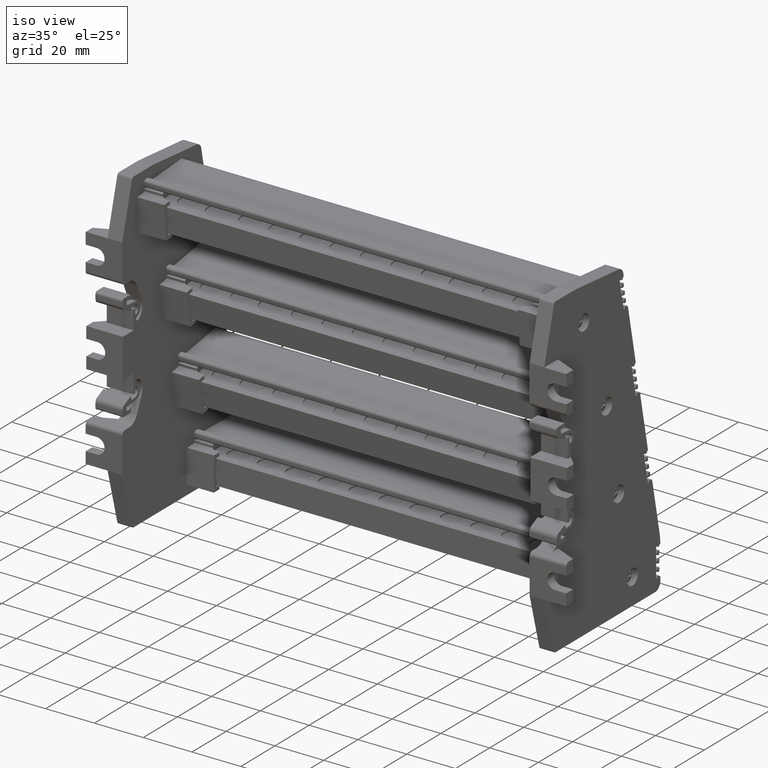
[diagram: clean part render]
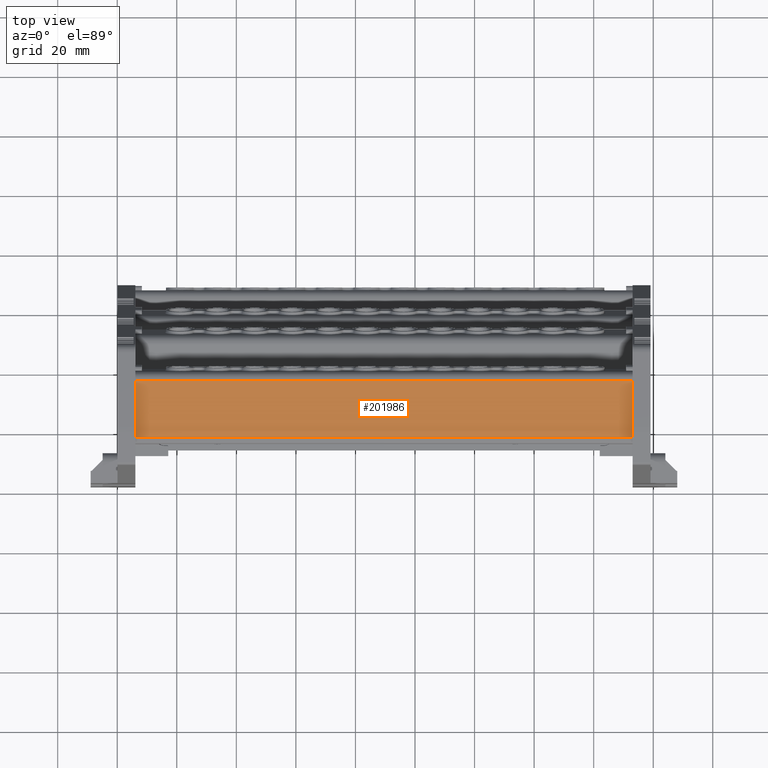
[diagram: tour spotlight — one face highlighted and labeled with its STEP entity id]
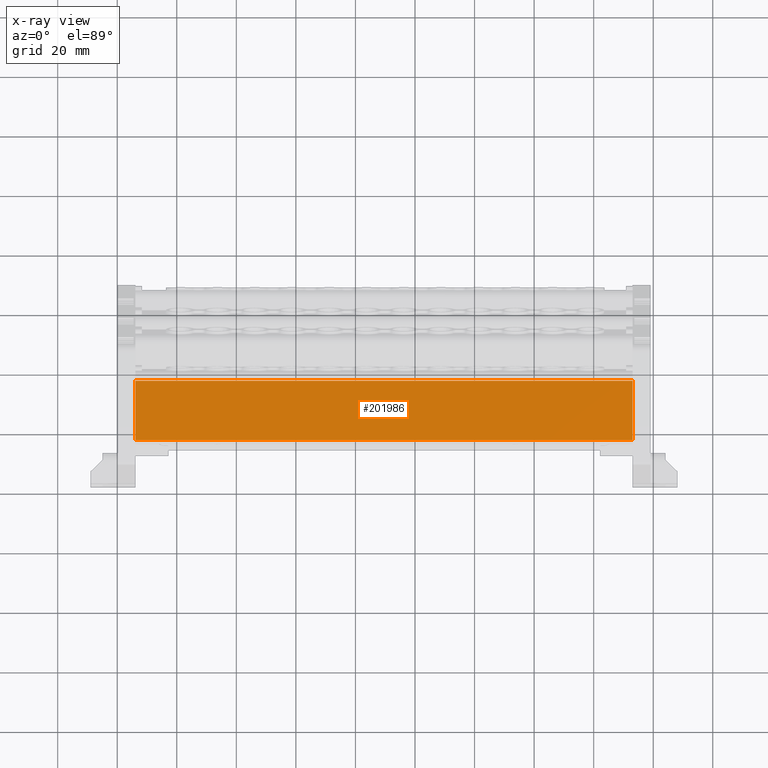
[diagram: x-ray of the same camera — body ghosted, this tour face saturated]
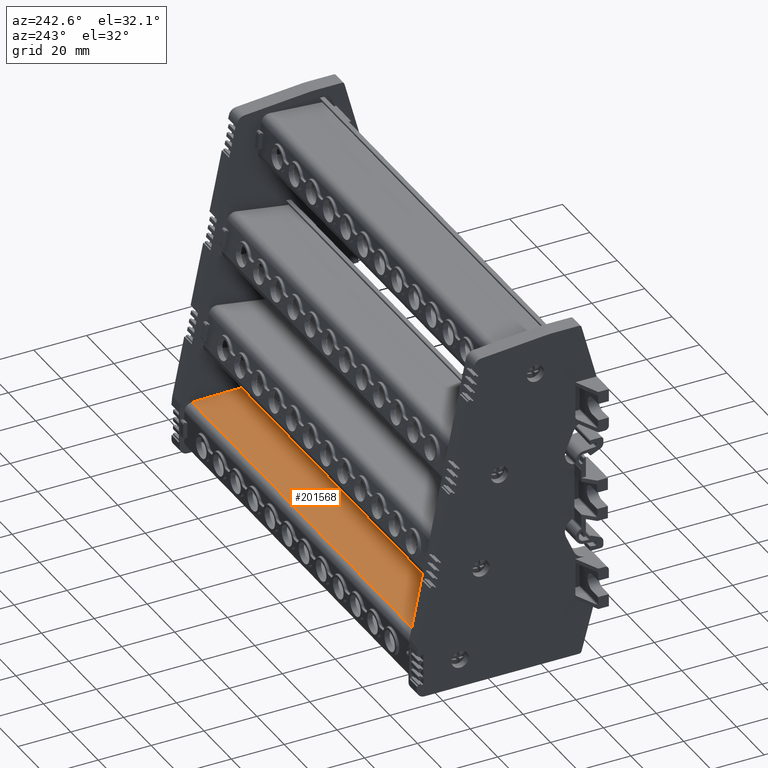
[diagram: tour spotlight — one face highlighted and labeled with its STEP entity id]
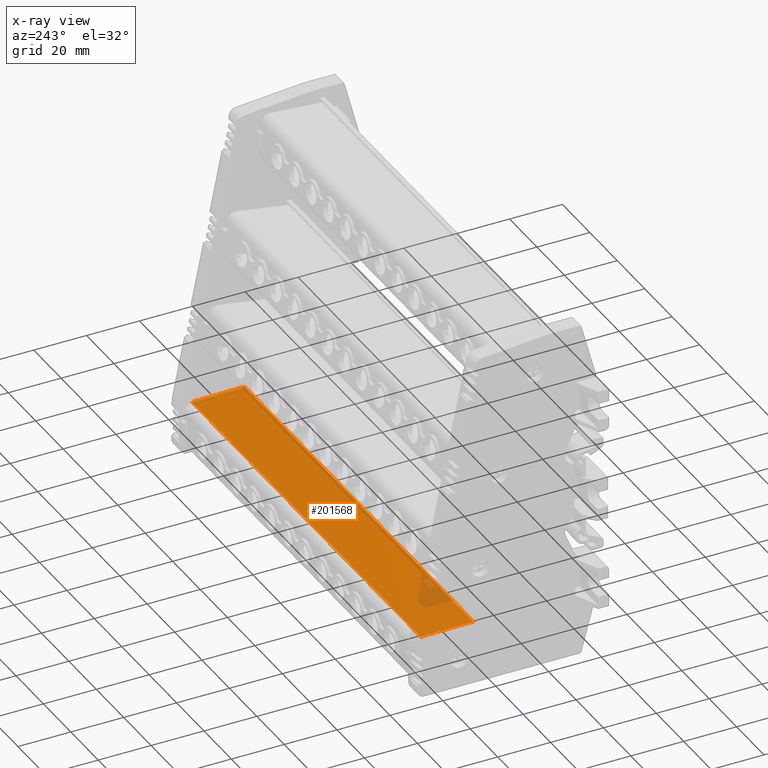
[diagram: x-ray of the same camera — body ghosted, this tour face saturated]
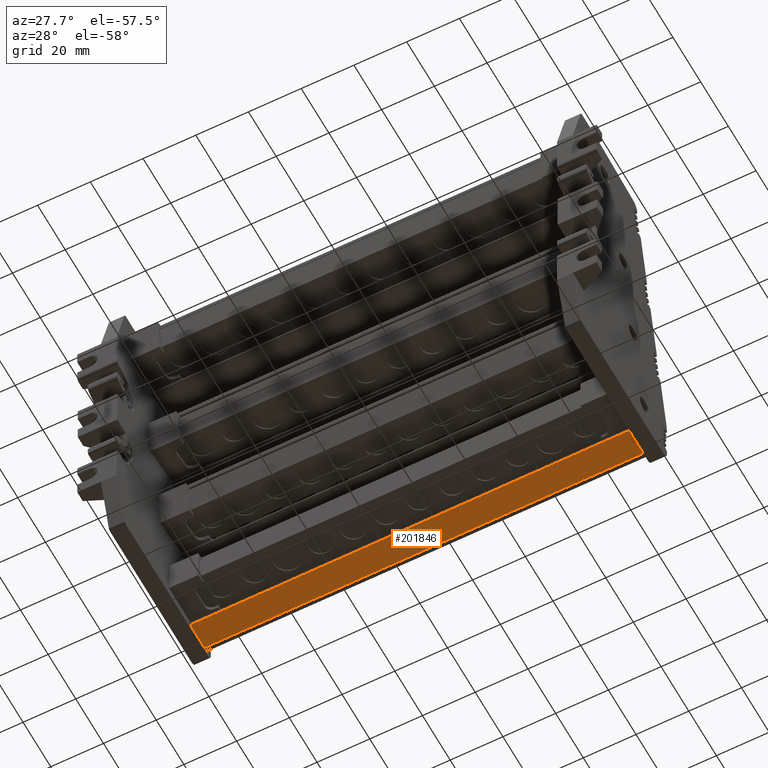
[diagram: tour spotlight — one face highlighted and labeled with its STEP entity id]
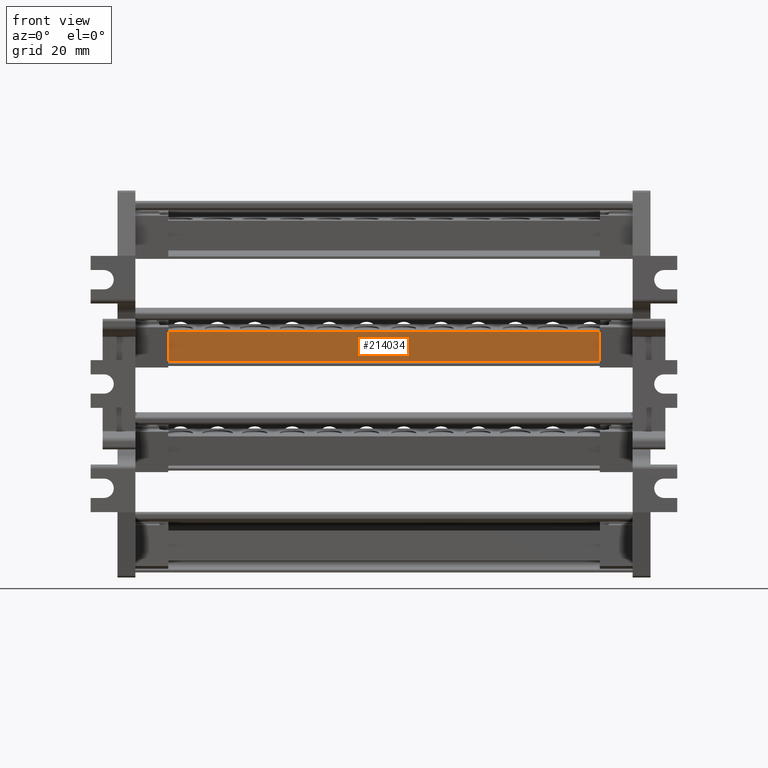
[diagram: tour spotlight — one face highlighted and labeled with its STEP entity id]
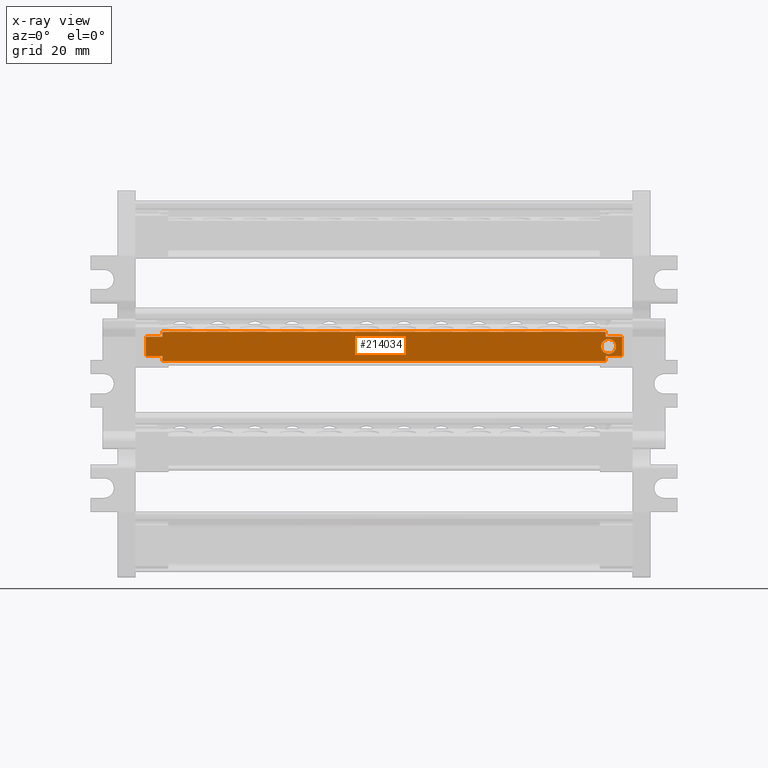
[diagram: x-ray of the same camera — body ghosted, this tour face saturated]
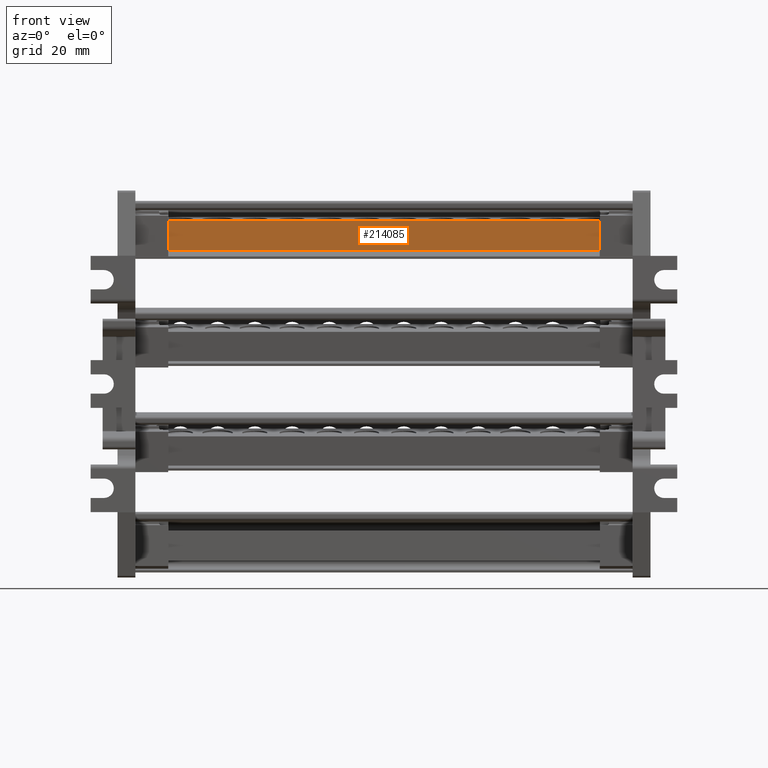
[diagram: tour spotlight — one face highlighted and labeled with its STEP entity id]
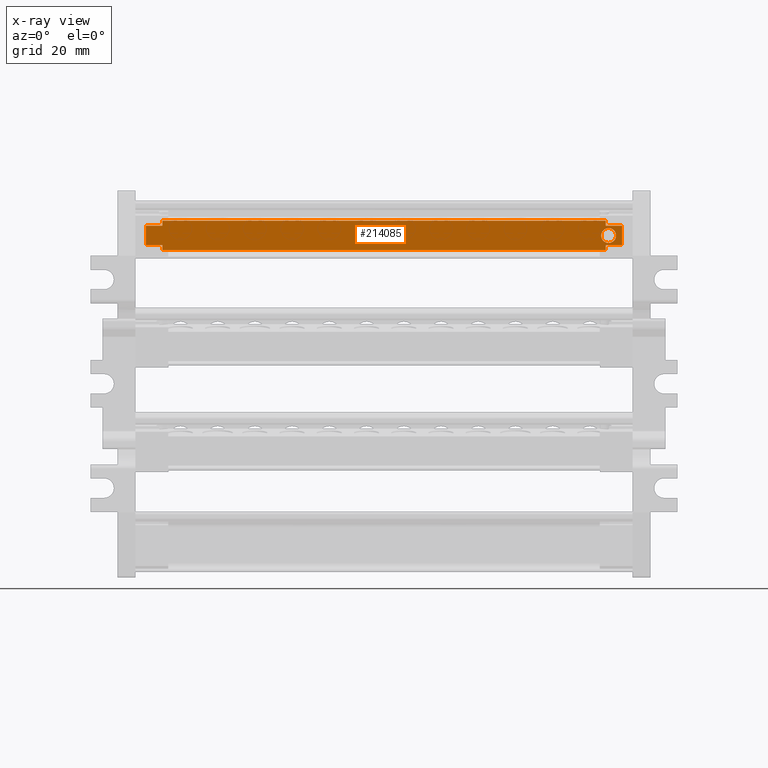
[diagram: x-ray of the same camera — body ghosted, this tour face saturated]
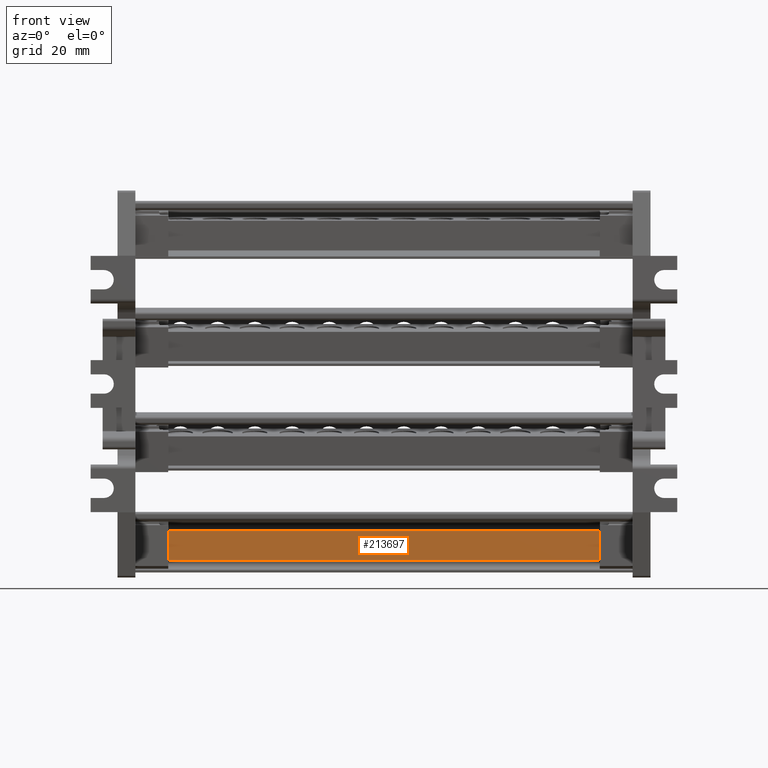
[diagram: tour spotlight — one face highlighted and labeled with its STEP entity id]
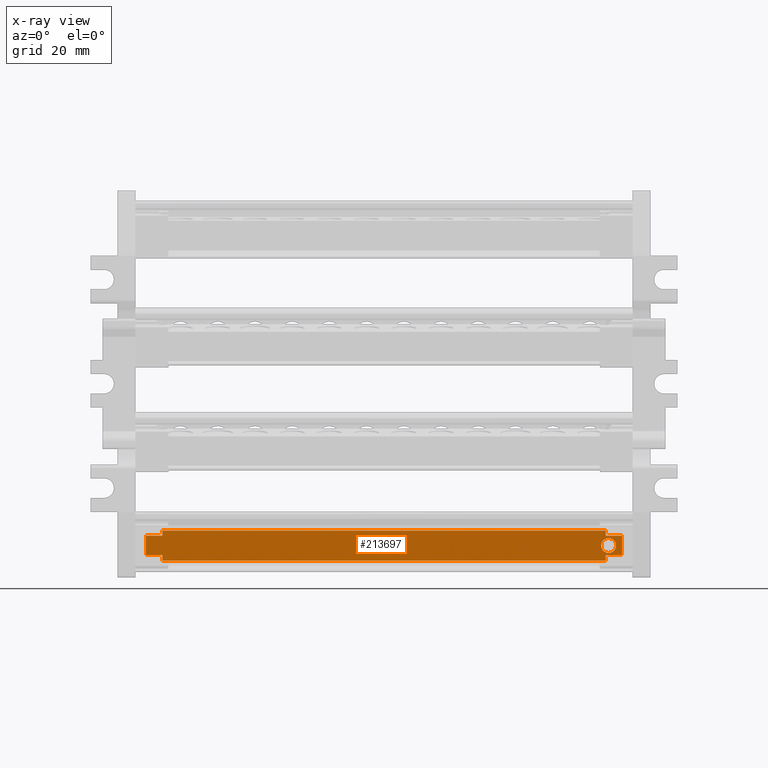
[diagram: x-ray of the same camera — body ghosted, this tour face saturated]
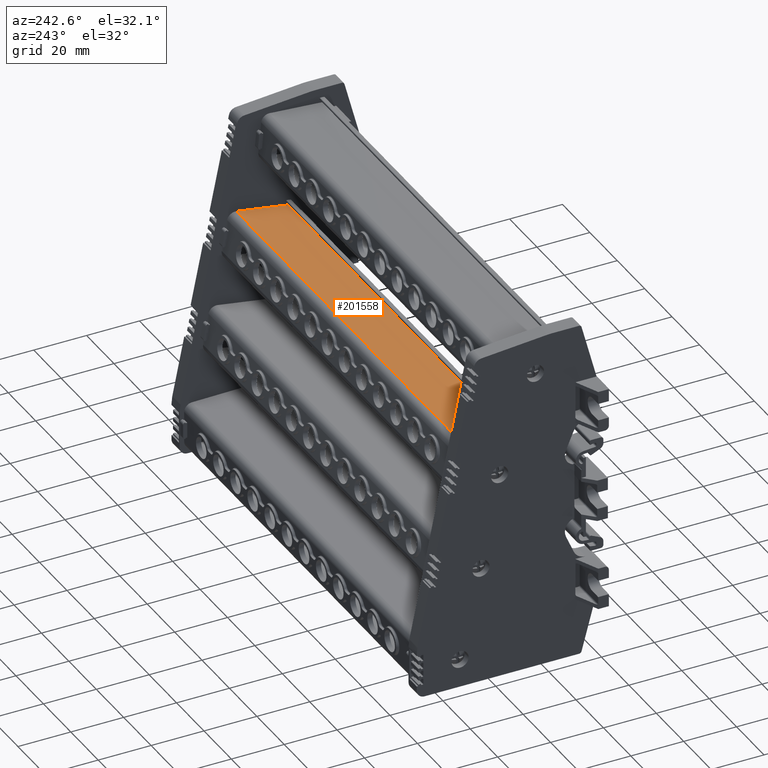
[diagram: tour spotlight — one face highlighted and labeled with its STEP entity id]
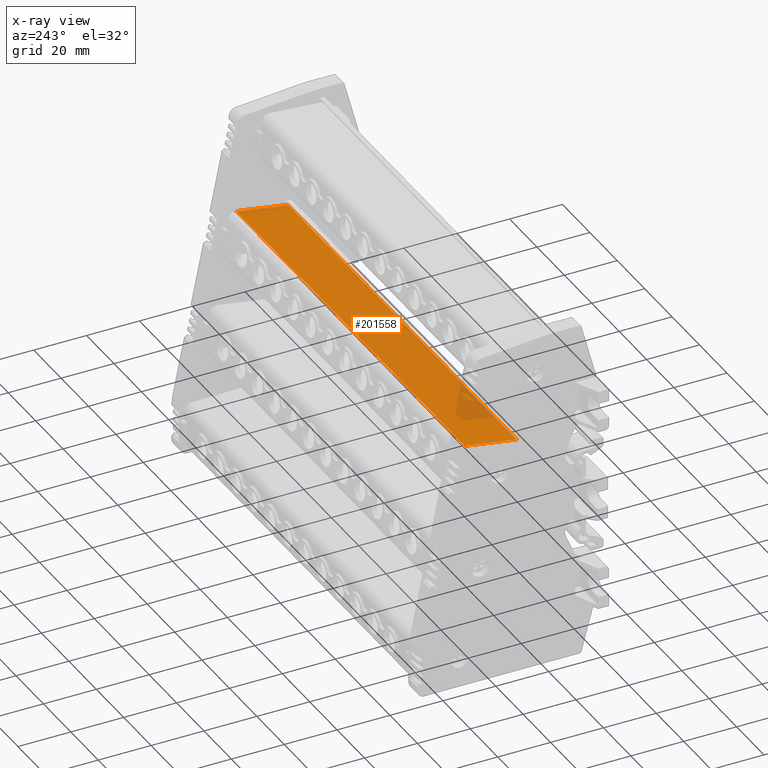
[diagram: x-ray of the same camera — body ghosted, this tour face saturated]
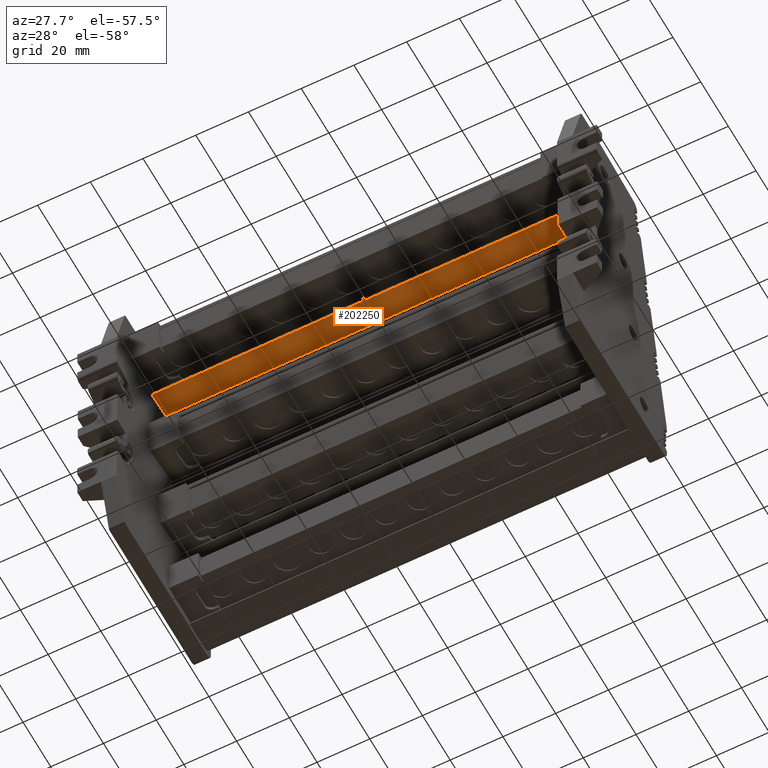
[diagram: tour spotlight — one face highlighted and labeled with its STEP entity id]
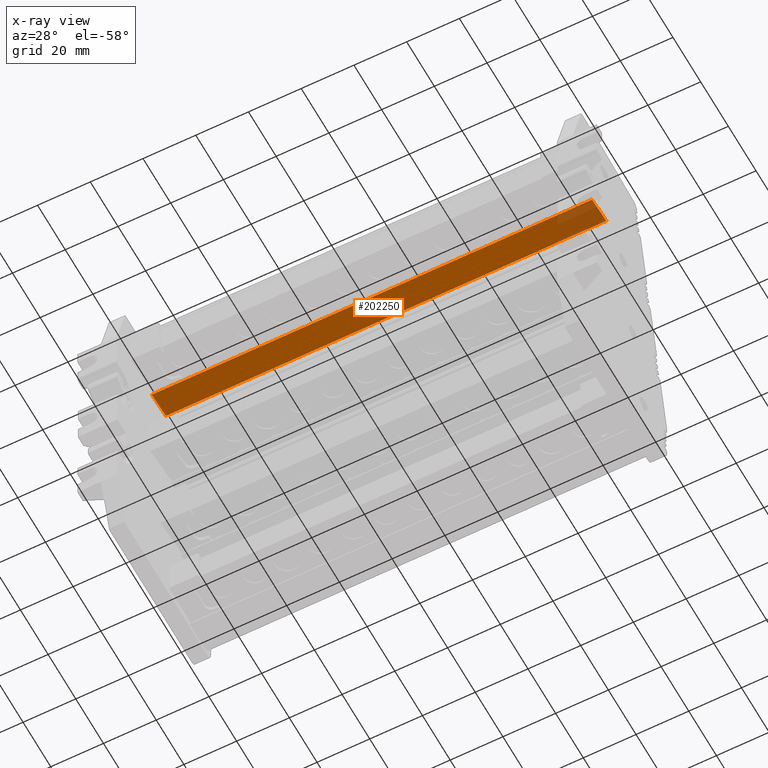
[diagram: x-ray of the same camera — body ghosted, this tour face saturated]
A machine part: a face-by-face anatomy tour. The part has 5028 B-rep faces; the first image is the clean iso view, then the 8 largest visible faces are spotlighted one at a time (largest first), each with its STEP entity span.

Face 1 — top view, entity #201986. An x-ray twin of the same camera follows (body ghosted, this face saturated) — the face is partly hidden behind the body. In plain terms, the highlighted planar face has unit normal (0, -0.0698, 0.9976).
Definition (entity closure, byte-faithful):
#18856 = CARTESIAN_POINT ( 'NONE',  ( -1246.910428931359300, 715.8455675923268000, 2359.786531312114200 ) ) ;
#18903 = CARTESIAN_POINT ( 'NONE',  ( -1246.910428931359300, 709.2309167015510000, 2359.323985803860100 ) ) ;
#18950 = CARTESIAN_POINT ( 'NONE',  ( -1246.910428931359300, 696.0016149199989300, 2358.398894787352200 ) ) ;
#18954 = CARTESIAN_POINT ( 'NONE',  ( -1246.910428931359300, 702.6162658107750800, 2358.861440295606400 ) ) ;
#24774 = VECTOR ( 'NONE', #90203, 1000.000000000000000 ) ;
#28967 = B_SPLINE_CURVE_WITH_KNOTS ( 'NONE', 3,
 ( #98396, #98432, #98441, #98439 ),
 .UNSPECIFIED., .F., .F.,
 ( 4, 4 ),
 ( 0.0000000000000000000, 1.000000000000000000 ),
 .UNSPECIFIED. ) ;
#62101 = CARTESIAN_POINT ( 'NONE',  ( -1246.910428931359300, 715.8455675923268000, 2359.786531312114200 ) ) ;
#62126 = CARTESIAN_POINT ( 'NONE',  ( -1413.910428931360200, 715.8455675923271400, 2359.786531312115100 ) ) ;
#68872 = CARTESIAN_POINT ( 'NONE',  ( -1246.910428931359300, 696.0016149199989300, 2358.398894787352200 ) ) ;
#68988 = CARTESIAN_POINT ( 'NONE',  ( -1413.910428931360200, 696.0016149199990400, 2358.398894787353100 ) ) ;
#79392 = ORIENTED_EDGE ( 'NONE', *, *, #134036, .F. ) ;
#79429 = ORIENTED_EDGE ( 'NONE', *, *, #132555, .T. ) ;
#79449 = ORIENTED_EDGE ( 'NONE', *, *, #134751, .F. ) ;
#79489 = ORIENTED_EDGE ( 'NONE', *, *, #132030, .T. ) ;
#81820 = VERTEX_POINT ( 'NONE', #68988 ) ;
#81896 = VERTEX_POINT ( 'NONE', #68872 ) ;
#85487 = LINE ( 'NONE', #85489, #187540 ) ;
#85489 = CARTESIAN_POINT ( 'NONE',  ( -1303.282428931388900, 696.0016149199990400, 2358.398894787352700 ) ) ;
#85514 = DIRECTION ( 'NONE',  ( 1.000000000000000000, 3.395226150698957500E-016, -4.855356993278778700E-015 ) ) ;
#90196 = LINE ( 'NONE', #90218, #24774 ) ;
#90203 = DIRECTION ( 'NONE',  ( 1.000000000000000000, -4.516343755036122400E-015, -5.194915226039366500E-015 ) ) ;
#90218 = CARTESIAN_POINT ( 'NONE',  ( -1303.282428931388900, 715.8455675923265700, 2359.786531312114700 ) ) ;
#98396 = CARTESIAN_POINT ( 'NONE',  ( -1413.910428931360200, 696.0016149199990400, 2358.398894787353100 ) ) ;
#98432 = CARTESIAN_POINT ( 'NONE',  ( -1413.910428931360200, 702.6162658107750800, 2358.861440295607300 ) ) ;
#98439 = CARTESIAN_POINT ( 'NONE',  ( -1413.910428931360200, 715.8455675923271400, 2359.786531312115100 ) ) ;
#98441 = CARTESIAN_POINT ( 'NONE',  ( -1413.910428931360200, 709.2309167015510000, 2359.323985803861400 ) ) ;
#113454 = EDGE_LOOP ( 'NONE', ( #79489, #79429, #79392, #79449 ) ) ;
#126205 = B_SPLINE_CURVE_WITH_KNOTS ( 'NONE', 3,
 ( #18950, #18954, #18903, #18856 ),
 .UNSPECIFIED., .F., .F.,
 ( 4, 4 ),
 ( 0.0000000000000000000, 1.000000000000000000 ),
 .UNSPECIFIED. ) ;
#132030 = EDGE_CURVE ( 'NONE', #81820, #81896, #85487, .T. ) ;
#132555 = EDGE_CURVE ( 'NONE', #81896, #184233, #126205, .T. ) ;
#134036 = EDGE_CURVE ( 'NONE', #184228, #184233, #90196, .T. ) ;
#134751 = EDGE_CURVE ( 'NONE', #81820, #184228, #28967, .T. ) ;
#159621 = AXIS2_PLACEMENT_3D ( 'NONE', #160531, #160521, #160511 ) ;
#160511 = DIRECTION ( 'NONE',  ( 0.0000000000000000000, -0.9975640076591211200, -0.06975708295989011000 ) ) ;
#160513 = PLANE ( 'NONE',  #159621 ) ;
#160521 = DIRECTION ( 'NONE',  ( 4.867213488057108000E-015, -0.06975708295989011000, 0.9975640076591211200 ) ) ;
#160531 = CARTESIAN_POINT ( 'NONE',  ( -1303.282428931388900, 707.5016939748588800, 2359.203065710236800 ) ) ;
#160542 = FACE_OUTER_BOUND ( 'NONE', #113454, .T. ) ;
#184228 = VERTEX_POINT ( 'NONE', #62126 ) ;
#184233 = VERTEX_POINT ( 'NONE', #62101 ) ;
#187540 = VECTOR ( 'NONE', #85514, 1000.000000000000000 ) ;
#201986 = ADVANCED_FACE ( 'NONE', ( #160542 ), #160513, .T. ) ;

Face 2 — auxiliary view, entity #201568. An x-ray twin of the same camera follows (body ghosted, this face saturated) — the face is partly hidden behind the body. In plain terms, the highlighted planar face has unit normal (0, 0.0175, 0.9998).
Definition (entity closure, byte-faithful):
#24681 = VECTOR ( 'NONE', #90143, 1000.000000000000000 ) ;
#28860 = B_SPLINE_CURVE_WITH_KNOTS ( 'NONE', 3,
 ( #82590, #82755, #82612, #82732 ),
 .UNSPECIFIED., .F., .F.,
 ( 4, 4 ),
 ( 0.0000000000000000000, 1.000000000000000000 ),
 .UNSPECIFIED. ) ;
#41202 = CARTESIAN_POINT ( 'NONE',  ( -1246.910428931360000, 725.3039620379792000, 2254.005720637113900 ) ) ;
#41204 = CARTESIAN_POINT ( 'NONE',  ( -1246.910428931359800, 738.5635493268700900, 2253.774281780206400 ) ) ;
#41234 = CARTESIAN_POINT ( 'NONE',  ( -1246.910428931359800, 731.9337556824247000, 2253.890001208659700 ) ) ;
#41239 = CARTESIAN_POINT ( 'NONE',  ( -1246.910428931360000, 745.1933429713151300, 2253.658562351753500 ) ) ;
#47036 = CARTESIAN_POINT ( 'NONE',  ( -1246.910428931360000, 725.3039620379792000, 2254.005720637113900 ) ) ;
#64358 = CARTESIAN_POINT ( 'NONE',  ( -1413.910428931360900, 745.1933429713153600, 2253.658562351754400 ) ) ;
#69207 = CARTESIAN_POINT ( 'NONE',  ( -1246.910428931360000, 745.1933429713151300, 2253.658562351753500 ) ) ;
#82368 = VERTEX_POINT ( 'NONE', #69207 ) ;
#82590 = CARTESIAN_POINT ( 'NONE',  ( -1413.910428931360900, 725.3039620379794300, 2254.005720637114800 ) ) ;
#82612 = CARTESIAN_POINT ( 'NONE',  ( -1413.910428931360900, 738.5635493268700900, 2253.774281780207700 ) ) ;
#82732 = CARTESIAN_POINT ( 'NONE',  ( -1413.910428931360900, 745.1933429713153600, 2253.658562351754400 ) ) ;
#82755 = CARTESIAN_POINT ( 'NONE',  ( -1413.910428931360900, 731.9337556824247000, 2253.890001208661500 ) ) ;
#86141 = CARTESIAN_POINT ( 'NONE',  ( -1413.910428931360900, 725.3039620379794300, 2254.005720637114800 ) ) ;
#90143 = DIRECTION ( 'NONE',  ( 1.000000000000000000, -4.318931644915934100E-015, -4.440247168776231400E-015 ) ) ;
#90156 = CARTESIAN_POINT ( 'NONE',  ( -1303.282428931368900, 745.1933429713149100, 2253.658562351754000 ) ) ;
#90183 = LINE ( 'NONE', #90156, #24681 ) ;
#113274 = EDGE_LOOP ( 'NONE', ( #198435, #198482, #198430, #198485 ) ) ;
#124420 = EDGE_CURVE ( 'NONE', #132086, #131666, #192287, .T. ) ;
#126374 = B_SPLINE_CURVE_WITH_KNOTS ( 'NONE', 3,
 ( #41202, #41234, #41204, #41239 ),
 .UNSPECIFIED., .F., .F.,
 ( 4, 4 ),
 ( 0.0000000000000000000, 1.000000000000000000 ),
 .UNSPECIFIED. ) ;
#131666 = VERTEX_POINT ( 'NONE', #47036 ) ;
#132086 = VERTEX_POINT ( 'NONE', #86141 ) ;
#132413 = EDGE_CURVE ( 'NONE', #131666, #82368, #126374, .T. ) ;
#133797 = EDGE_CURVE ( 'NONE', #132086, #194119, #28860, .T. ) ;
#133997 = EDGE_CURVE ( 'NONE', #194119, #82368, #90183, .T. ) ;
#152038 = DIRECTION ( 'NONE',  ( 0.0000000000000000000, -0.9998477058144490400, 0.01745179582687282600 ) ) ;
#152068 = CARTESIAN_POINT ( 'NONE',  ( -1303.282428931369200, 736.8303679341468100, 2253.804533515166900 ) ) ;
#152083 = DIRECTION ( 'NONE',  ( 4.514944063625902900E-015, 0.01745179582687283000, 0.9998477058144491500 ) ) ;
#152095 = FACE_OUTER_BOUND ( 'NONE', #113274, .T. ) ;
#152101 = PLANE ( 'NONE',  #159521 ) ;
#159521 = AXIS2_PLACEMENT_3D ( 'NONE', #152068, #152083, #152038 ) ;
#192212 = DIRECTION ( 'NONE',  ( 1.000000000000000000, -7.879388196815077700E-017, -4.514256463896924700E-015 ) ) ;
#192275 = CARTESIAN_POINT ( 'NONE',  ( -1303.282428931369200, 725.3039620379794300, 2254.005720637113400 ) ) ;
#192287 = LINE ( 'NONE', #192275, #197507 ) ;
#194119 = VERTEX_POINT ( 'NONE', #64358 ) ;
#197507 = VECTOR ( 'NONE', #192212, 1000.000000000000000 ) ;
#198430 = ORIENTED_EDGE ( 'NONE', *, *, #133997, .F. ) ;
#198435 = ORIENTED_EDGE ( 'NONE', *, *, #124420, .T. ) ;
#198482 = ORIENTED_EDGE ( 'NONE', *, *, #132413, .T. ) ;
#198485 = ORIENTED_EDGE ( 'NONE', *, *, #133797, .F. ) ;
#201568 = ADVANCED_FACE ( 'NONE', ( #152095 ), #152101, .T. ) ;

Face 3 — auxiliary view, entity #201846. In plain terms, the highlighted planar face has unit normal (-0, 0.0175, -0.9998).
Definition (entity closure, byte-faithful):
#20160 = CARTESIAN_POINT ( 'NONE',  ( -1246.910428931360000, 734.8286816854246100, 2235.678555774974500 ) ) ;
#22754 = CARTESIAN_POINT ( 'NONE',  ( -1413.910428931360900, 734.8286816854249500, 2235.678555774975400 ) ) ;
#24811 = VECTOR ( 'NONE', #90416, 1000.000000000000000 ) ;
#28915 = B_SPLINE_CURVE_WITH_KNOTS ( 'NONE', 3,
 ( #89419, #89424, #89430, #89448 ),
 .UNSPECIFIED., .F., .F.,
 ( 4, 4 ),
 ( 0.0000000000000000000, 1.000000000000000000 ),
 .UNSPECIFIED. ) ;
#37877 = CARTESIAN_POINT ( 'NONE',  ( -1246.910428931360000, 745.1933460679950900, 2235.859476036640000 ) ) ;
#37903 = CARTESIAN_POINT ( 'NONE',  ( -1246.910428931360000, 738.2835698129481400, 2235.738862528863100 ) ) ;
#37911 = CARTESIAN_POINT ( 'NONE',  ( -1246.910428931360000, 741.7384579404716800, 2235.799169282750900 ) ) ;
#37980 = CARTESIAN_POINT ( 'NONE',  ( -1246.910428931360000, 734.8286816854246100, 2235.678555774974500 ) ) ;
#64549 = CARTESIAN_POINT ( 'NONE',  ( -1413.910428931360900, 745.1933460679953200, 2235.859476036640900 ) ) ;
#69170 = CARTESIAN_POINT ( 'NONE',  ( -1246.910428931360000, 745.1933460679950900, 2235.859476036640000 ) ) ;
#82202 = VERTEX_POINT ( 'NONE', #69170 ) ;
#89419 = CARTESIAN_POINT ( 'NONE',  ( -1413.910428931360900, 745.1933460679953200, 2235.859476036640900 ) ) ;
#89424 = CARTESIAN_POINT ( 'NONE',  ( -1413.910428931360900, 741.7384579404717900, 2235.799169282752200 ) ) ;
#89430 = CARTESIAN_POINT ( 'NONE',  ( -1413.910428931360900, 738.2835698129482600, 2235.738862528864000 ) ) ;
#89448 = CARTESIAN_POINT ( 'NONE',  ( -1413.910428931360900, 734.8286816854249500, 2235.678555774975400 ) ) ;
#90408 = LINE ( 'NONE', #90441, #24811 ) ;
#90416 = DIRECTION ( 'NONE',  ( 1.000000000000000000, 7.616751523960975000E-017, -4.363528579097086000E-015 ) ) ;
#90441 = CARTESIAN_POINT ( 'NONE',  ( -1303.282428931369200, 745.1933460679950900, 2235.859476036640000 ) ) ;
#104828 = VERTEX_POINT ( 'NONE', #22754 ) ;
#105272 = VERTEX_POINT ( 'NONE', #20160 ) ;
#113262 = EDGE_LOOP ( 'NONE', ( #198628, #202368, #202349, #202238 ) ) ;
#125233 = EDGE_CURVE ( 'NONE', #105272, #104828, #201283, .T. ) ;
#126202 = B_SPLINE_CURVE_WITH_KNOTS ( 'NONE', 3,
 ( #37877, #37911, #37903, #37980 ),
 .UNSPECIFIED., .F., .F.,
 ( 4, 4 ),
 ( 0.0000000000000000000, 1.000000000000000000 ),
 .UNSPECIFIED. ) ;
#132487 = EDGE_CURVE ( 'NONE', #82202, #105272, #126202, .T. ) ;
#134129 = EDGE_CURVE ( 'NONE', #198590, #82202, #90408, .T. ) ;
#134193 = EDGE_CURVE ( 'NONE', #198590, #104828, #28915, .T. ) ;
#159542 = AXIS2_PLACEMENT_3D ( 'NONE', #160229, #160256, #160268 ) ;
#160223 = FACE_OUTER_BOUND ( 'NONE', #113262, .T. ) ;
#160229 = CARTESIAN_POINT ( 'NONE',  ( -1303.282428931369200, 736.0143720336168400, 2235.699252577122000 ) ) ;
#160235 = PLANE ( 'NONE',  #159542 ) ;
#160256 = DIRECTION ( 'NONE',  ( -4.364193298992932900E-015, 0.01745282805351127900, -0.9998476877969637600 ) ) ;
#160268 = DIRECTION ( 'NONE',  ( 0.0000000000000000000, 0.9998476877969636500, 0.01745282805351127500 ) ) ;
#197907 = VECTOR ( 'NONE', #201373, 1000.000000000000000 ) ;
#198590 = VERTEX_POINT ( 'NONE', #64549 ) ;
#198628 = ORIENTED_EDGE ( 'NONE', *, *, #134129, .T. ) ;
#201283 = LINE ( 'NONE', #201317, #197907 ) ;
#201317 = CARTESIAN_POINT ( 'NONE',  ( -1303.282428931369200, 734.8286816854247300, 2235.678555774974900 ) ) ;
#201373 = DIRECTION ( 'NONE',  ( -1.000000000000000000, -7.616751523960975000E-017, 4.363528579097086000E-015 ) ) ;
#201846 = ADVANCED_FACE ( 'NONE', ( #160223 ), #160235, .T. ) ;
#202238 = ORIENTED_EDGE ( 'NONE', *, *, #134193, .F. ) ;
#202349 = ORIENTED_EDGE ( 'NONE', *, *, #125233, .T. ) ;
#202368 = ORIENTED_EDGE ( 'NONE', *, *, #132487, .T. ) ;

Face 4 — front view, entity #214034. An x-ray twin of the same camera follows (body ghosted, this face saturated) — the face is partly hidden behind the body. In plain terms, the highlighted planar face has unit normal (-0, 0.9848, 0.1736).
Definition (entity closure, byte-faithful):
#5256 = LINE ( 'NONE', #5318, #159058 ) ;
#5299 = DIRECTION ( 'NONE',  ( 1.000000000000000000, 1.181062958423753300E-014, 2.082532654854678700E-015 ) ) ;
#5318 = CARTESIAN_POINT ( 'NONE',  ( -1410.382428931394300, 706.0797057947633000, 2314.776816849077900 ) ) ;
#5832 = LINE ( 'NONE', #5847, #159068 ) ;
#5835 = DIRECTION ( 'NONE',  ( -0.0000000000000000000, 0.1736481776669305000, -0.9848077530122081300 ) ) ;
#5847 = CARTESIAN_POINT ( 'NONE',  ( -1250.438428931325700, 705.7858952838130300, 2316.443099058253700 ) ) ;
#5972 = LINE ( 'NONE', #6133, #159002 ) ;
#6057 = DIRECTION ( 'NONE',  ( -1.000000000000000000, -1.181062958423753300E-014, -2.082532654854678700E-015 ) ) ;
#6133 = CARTESIAN_POINT ( 'NONE',  ( -1410.382428931394300, 707.2285665495290900, 2308.261303737302600 ) ) ;
#10326 = CARTESIAN_POINT ( 'NONE',  ( -1254.982428931394000, 707.0882566163147700, 2309.057040910661700 ) ) ;
#10327 = CARTESIAN_POINT ( 'NONE',  ( -1254.655179696645300, 707.0882566163145400, 2309.057040910662200 ) ) ;
#10328 = CARTESIAN_POINT ( 'NONE',  ( -1254.328059220496200, 707.0769576231495000, 2309.121120685180400 ) ) ;
#10330 = CARTESIAN_POINT ( 'NONE',  ( -1252.547497239723000, 706.5405060643295200, 2312.163488657821300 ) ) ;
#10331 = CARTESIAN_POINT ( 'NONE',  ( -1252.983261825398400, 706.3873488771101800, 2313.032086229241900 ) ) ;
#10333 = CARTESIAN_POINT ( 'NONE',  ( -1252.983261825398100, 706.9209234671843700, 2310.006034357144500 ) ) ;
#10335 = CARTESIAN_POINT ( 'NONE',  ( -1252.797962960508400, 706.4355048766976800, 2312.758979984276700 ) ) ;
#10340 = CARTESIAN_POINT ( 'NONE',  ( -1252.797962960508400, 706.8727674675971000, 2310.279140602109700 ) ) ;
#10341 = CARTESIAN_POINT ( 'NONE',  ( -1252.482428931394000, 706.7109624054045300, 2311.196782709645000 ) ) ;
#10347 = CARTESIAN_POINT ( 'NONE',  ( -1252.482428931393300, 706.5973099388901300, 2311.841337876740500 ) ) ;
#10351 = CARTESIAN_POINT ( 'NONE',  ( -1253.723381480466700, 706.2748076371276500, 2313.670339317512600 ) ) ;
#10352 = CARTESIAN_POINT ( 'NONE',  ( -1254.655179696645300, 706.2200157279801300, 2313.981079675723800 ) ) ;
#10353 = CARTESIAN_POINT ( 'NONE',  ( -1253.446062131456500, 706.3069844473393500, 2313.487855558744700 ) ) ;
#10355 = CARTESIAN_POINT ( 'NONE',  ( -1253.723381480466500, 707.0334647071670100, 2309.367781268872000 ) ) ;
#10357 = CARTESIAN_POINT ( 'NONE',  ( -1254.982428931394000, 706.2200157279801300, 2313.981079675722900 ) ) ;
#10360 = CARTESIAN_POINT ( 'NONE',  ( -1253.446062131456800, 707.0012878969552000, 2309.550265027641700 ) ) ;
#10372 = CARTESIAN_POINT ( 'NONE',  ( -1252.547497239722800, 706.7677662799652600, 2310.874631928563300 ) ) ;
#10377 = CARTESIAN_POINT ( 'NONE',  ( -1254.328059220495800, 706.2313147211452800, 2313.916999901205600 ) ) ;
#11696 = CARTESIAN_POINT ( 'NONE',  ( -1255.938428931325500, 707.5440830826895500, 2306.471920559005000 ) ) ;
#11707 = DIRECTION ( 'NONE',  ( 1.000000000000000000, 1.216784883144208100E-014, 3.703815455732279800E-016 ) ) ;
#11754 = LINE ( 'NONE', #11696, #159370 ) ;
#11763 = CARTESIAN_POINT ( 'NONE',  ( -1385.382428931394100, 706.0797057947647800, 2314.776816849075700 ) ) ;
#11782 = LINE ( 'NONE', #11763, #159285 ) ;
#11819 = DIRECTION ( 'NONE',  ( -0.0000000000000000000, -0.1736481776669314100, 0.9848077530122079100 ) ) ;
#11863 = LINE ( 'NONE', #11974, #159277 ) ;
#11870 = DIRECTION ( 'NONE',  ( 0.0000000000000000000, -0.1736481776669305000, 0.9848077530122081300 ) ) ;
#11873 = CARTESIAN_POINT ( 'NONE',  ( -1410.382428931394300, 705.7858952838129200, 2316.443099058253700 ) ) ;
#11880 = DIRECTION ( 'NONE',  ( -1.000000000000000000, -1.514491706019197600E-016, 8.589109278308477900E-016 ) ) ;
#11967 = LINE ( 'NONE', #11873, #159311 ) ;
#11974 = CARTESIAN_POINT ( 'NONE',  ( -1404.882428931394100, 705.7858952838113300, 2316.443099058253200 ) ) ;
#12035 = LINE ( 'NONE', #12108, #159374 ) ;
#12040 = LINE ( 'NONE', #12215, #159355 ) ;
#12108 = CARTESIAN_POINT ( 'NONE',  ( -1410.382428931394300, 707.5223770604810600, 2306.595021528131400 ) ) ;
#12146 = DIRECTION ( 'NONE',  ( -1.000000000000000000, -1.514491706019197600E-016, 8.589109278308477900E-016 ) ) ;
#12154 = DIRECTION ( 'NONE',  ( 0.0000000000000000000, -0.1736481776669305000, 0.9848077530122081300 ) ) ;
#12168 = DIRECTION ( 'NONE',  ( -0.0000000000000000000, -0.1736481776669314100, 0.9848077530122079100 ) ) ;
#12172 = LINE ( 'NONE', #12245, #159381 ) ;
#12215 = CARTESIAN_POINT ( 'NONE',  ( -1255.938428931325500, 707.5440830826895500, 2306.471920559005000 ) ) ;
#12242 = LINE ( 'NONE', #12253, #159357 ) ;
#12245 = CARTESIAN_POINT ( 'NONE',  ( -1385.382428931394100, 707.2285665495288600, 2308.261303737304800 ) ) ;
#12253 = CARTESIAN_POINT ( 'NONE',  ( -1404.882428931392700, 705.7858952838113300, 2316.443099058253200 ) ) ;
#12283 = DIRECTION ( 'NONE',  ( -1.000000000000000000, -1.216784883144208100E-014, -3.703815455732279800E-016 ) ) ;
#12368 = DIRECTION ( 'NONE',  ( 0.0000000000000000000, 0.1736481776671057200, -0.9848077530121770500 ) ) ;
#12413 = LINE ( 'NONE', #12416, #159288 ) ;
#12416 = CARTESIAN_POINT ( 'NONE',  ( -1410.382428931394300, 706.0797057947629600, 2314.776816849075200 ) ) ;
#29577 = AXIS2_PLACEMENT_3D ( 'NONE', #59283, #59327, #59289 ) ;
#49911 = B_SPLINE_CURVE_WITH_KNOTS ( 'NONE', 3,
 ( #81644, #81535, #81539, #81571, #81543, #81631, #81563, #81565, #81551, #81553, #81646, #81648, #81573, #81599, #81595, #81577, #81581, #81583 ),
 .UNSPECIFIED., .F., .F.,
 ( 4, 2, 2, 2, 2, 2, 2, 2, 4 ),
 ( 0.0000000000000000000, 0.1250000000000000000, 0.2500000000000000000, 0.3750000000000000000, 0.5000000000000000000, 0.6250000000000000000, 0.7500000000000000000, 0.8750000000000000000, 1.000000000000000000 ),
 .UNSPECIFIED. ) ;
#59283 = CARTESIAN_POINT ( 'NONE',  ( -1410.382428931394300, 705.7858952838112100, 2316.443099058253200 ) ) ;
#59288 = FACE_OUTER_BOUND ( 'NONE', #134549, .T. ) ;
#59289 = DIRECTION ( 'NONE',  ( 0.0000000000000000000, -0.1736481776669305000, 0.9848077530122081300 ) ) ;
#59301 = PLANE ( 'NONE',  #29577 ) ;
#59327 = DIRECTION ( 'NONE',  ( -1.199282758295986500E-014, 0.9848077530122081300, 0.1736481776669305000 ) ) ;
#59330 = FACE_BOUND ( 'NONE', #134286, .T. ) ;
#78121 = VERTEX_POINT ( 'NONE', #96037 ) ;
#81535 = CARTESIAN_POINT ( 'NONE',  ( -1255.309678166142500, 706.2200157279801300, 2313.981079675722900 ) ) ;
#81539 = CARTESIAN_POINT ( 'NONE',  ( -1255.636798642292400, 706.2313147211454000, 2313.916999901205600 ) ) ;
#81543 = CARTESIAN_POINT ( 'NONE',  ( -1256.518795731331200, 706.3069844473395700, 2313.487855558744700 ) ) ;
#81551 = CARTESIAN_POINT ( 'NONE',  ( -1257.482428931394200, 706.5973099388901300, 2311.841337876740900 ) ) ;
#81553 = CARTESIAN_POINT ( 'NONE',  ( -1257.482428931394200, 706.7109624054044200, 2311.196782709644100 ) ) ;
#81563 = CARTESIAN_POINT ( 'NONE',  ( -1257.166894902279600, 706.4355048766976800, 2312.758979984276300 ) ) ;
#81565 = CARTESIAN_POINT ( 'NONE',  ( -1257.417360623065200, 706.5405060643294100, 2312.163488657821700 ) ) ;
#81571 = CARTESIAN_POINT ( 'NONE',  ( -1256.241476382321000, 706.2748076371275400, 2313.670339317511700 ) ) ;
#81573 = CARTESIAN_POINT ( 'NONE',  ( -1256.981596037389900, 706.9209234671844800, 2310.006034357144500 ) ) ;
#81577 = CARTESIAN_POINT ( 'NONE',  ( -1255.636798642292000, 707.0769576231495000, 2309.121120685179900 ) ) ;
#81581 = CARTESIAN_POINT ( 'NONE',  ( -1255.309678166142500, 707.0882566163147700, 2309.057040910662600 ) ) ;
#81583 = CARTESIAN_POINT ( 'NONE',  ( -1254.982428931394000, 707.0882566163147700, 2309.057040910661700 ) ) ;
#81595 = CARTESIAN_POINT ( 'NONE',  ( -1256.241476382321300, 707.0334647071671300, 2309.367781268873400 ) ) ;
#81599 = CARTESIAN_POINT ( 'NONE',  ( -1256.518795731331000, 707.0012878969552000, 2309.550265027641200 ) ) ;
#81631 = CARTESIAN_POINT ( 'NONE',  ( -1256.981596037389600, 706.3873488771101800, 2313.032086229241900 ) ) ;
#81644 = CARTESIAN_POINT ( 'NONE',  ( -1254.982428931394000, 706.2200157279801300, 2313.981079675722900 ) ) ;
#81646 = CARTESIAN_POINT ( 'NONE',  ( -1257.417360623065000, 706.7677662799651400, 2310.874631928563800 ) ) ;
#81648 = CARTESIAN_POINT ( 'NONE',  ( -1257.166894902279600, 706.8727674675968700, 2310.279140602109200 ) ) ;
#96037 = CARTESIAN_POINT ( 'NONE',  ( -1254.982428931394000, 707.0882566163147700, 2309.057040910661700 ) ) ;
#106172 = ORIENTED_EDGE ( 'NONE', *, *, #210802, .F. ) ;
#106174 = ORIENTED_EDGE ( 'NONE', *, *, #210755, .F. ) ;
#106226 = ORIENTED_EDGE ( 'NONE', *, *, #210744, .F. ) ;
#106232 = ORIENTED_EDGE ( 'NONE', *, *, #128608, .F. ) ;
#106254 = ORIENTED_EDGE ( 'NONE', *, *, #210864, .T. ) ;
#106288 = ORIENTED_EDGE ( 'NONE', *, *, #210735, .T. ) ;
#106320 = ORIENTED_EDGE ( 'NONE', *, *, #210816, .T. ) ;
#106322 = ORIENTED_EDGE ( 'NONE', *, *, #210779, .T. ) ;
#106340 = ORIENTED_EDGE ( 'NONE', *, *, #210819, .F. ) ;
#106342 = ORIENTED_EDGE ( 'NONE', *, *, #144954, .F. ) ;
#106348 = ORIENTED_EDGE ( 'NONE', *, *, #210836, .F. ) ;
#106368 = ORIENTED_EDGE ( 'NONE', *, *, #210370, .F. ) ;
#106398 = ORIENTED_EDGE ( 'NONE', *, *, #210271, .F. ) ;
#106412 = ORIENTED_EDGE ( 'NONE', *, *, #210349, .F. ) ;
#114378 = VERTEX_POINT ( 'NONE', #172995 ) ;
#114446 = VERTEX_POINT ( 'NONE', #172914 ) ;
#114458 = VERTEX_POINT ( 'NONE', #173028 ) ;
#114465 = VERTEX_POINT ( 'NONE', #172944 ) ;
#114543 = VERTEX_POINT ( 'NONE', #173169 ) ;
#114552 = VERTEX_POINT ( 'NONE', #173146 ) ;
#114640 = VERTEX_POINT ( 'NONE', #173290 ) ;
#114661 = VERTEX_POINT ( 'NONE', #173219 ) ;
#114703 = VERTEX_POINT ( 'NONE', #173280 ) ;
#114734 = VERTEX_POINT ( 'NONE', #173363 ) ;
#114794 = VERTEX_POINT ( 'NONE', #173350 ) ;
#114806 = VERTEX_POINT ( 'NONE', #173358 ) ;
#122251 = B_SPLINE_CURVE_WITH_KNOTS ( 'NONE', 3,
 ( #10326, #10327, #10328, #10355, #10360, #10333, #10340, #10372, #10341, #10347, #10330, #10335, #10331, #10353, #10351, #10377, #10352, #10357 ),
 .UNSPECIFIED., .F., .F.,
 ( 4, 2, 2, 2, 2, 2, 2, 2, 4 ),
 ( 0.0000000000000000000, 0.1250000000000000000, 0.2500000000000000000, 0.3750000000000000000, 0.5000000000000000000, 0.6250000000000000000, 0.7500000000000000000, 0.8750000000000000000, 1.000000000000000000 ),
 .UNSPECIFIED. ) ;
#128608 = EDGE_CURVE ( 'NONE', #78121, #139711, #122251, .T. ) ;
#134286 = EDGE_LOOP ( 'NONE', ( #106342, #106232 ) ) ;
#134549 = EDGE_LOOP ( 'NONE', ( #106226, #106254, #106340, #106348, #106172, #106288, #106368, #106412, #106398, #106320, #106322, #106174 ) ) ;
#139711 = VERTEX_POINT ( 'NONE', #205042 ) ;
#144954 = EDGE_CURVE ( 'NONE', #139711, #78121, #49911, .T. ) ;
#159002 = VECTOR ( 'NONE', #6057, 1000.000000000000000 ) ;
#159058 = VECTOR ( 'NONE', #5299, 1000.000000000000000 ) ;
#159068 = VECTOR ( 'NONE', #5835, 999.9999999999998900 ) ;
#159277 = VECTOR ( 'NONE', #11870, 999.9999999999998900 ) ;
#159285 = VECTOR ( 'NONE', #11707, 1000.000000000000000 ) ;
#159288 = VECTOR ( 'NONE', #12368, 1000.000000000000100 ) ;
#159311 = VECTOR ( 'NONE', #11880, 1000.000000000000000 ) ;
#159355 = VECTOR ( 'NONE', #12168, 1000.000000000000100 ) ;
#159357 = VECTOR ( 'NONE', #12154, 999.9999999999998900 ) ;
#159370 = VECTOR ( 'NONE', #11819, 1000.000000000000100 ) ;
#159374 = VECTOR ( 'NONE', #12146, 1000.000000000000000 ) ;
#159381 = VECTOR ( 'NONE', #12283, 1000.000000000000000 ) ;
#172914 = CARTESIAN_POINT ( 'NONE',  ( -1255.938428931325200, 707.2285665495298900, 2308.261303737302600 ) ) ;
#172944 = CARTESIAN_POINT ( 'NONE',  ( -1255.938428931322100, 706.0797057947643200, 2314.776816849078400 ) ) ;
#172995 = CARTESIAN_POINT ( 'NONE',  ( -1255.938428931311800, 705.7858952838126900, 2316.443099058253700 ) ) ;
#173028 = CARTESIAN_POINT ( 'NONE',  ( -1250.438428931325700, 706.0797057947650000, 2314.776816849078400 ) ) ;
#173146 = CARTESIAN_POINT ( 'NONE',  ( -1255.938428931325500, 707.5223770604815200, 2306.595021528130900 ) ) ;
#173169 = CARTESIAN_POINT ( 'NONE',  ( -1250.438428931325700, 707.2285665495303400, 2308.261303737303000 ) ) ;
#173219 = CARTESIAN_POINT ( 'NONE',  ( -1404.882428931394100, 705.7858952838119000, 2316.443099058253200 ) ) ;
#173280 = CARTESIAN_POINT ( 'NONE',  ( -1404.882428931393600, 707.2285665495288600, 2308.261303737304800 ) ) ;
#173290 = CARTESIAN_POINT ( 'NONE',  ( -1410.382428931394300, 707.2285665495288600, 2308.261303737304800 ) ) ;
#173350 = CARTESIAN_POINT ( 'NONE',  ( -1410.382428931394300, 706.0797057947636400, 2314.776816849075700 ) ) ;
#173358 = CARTESIAN_POINT ( 'NONE',  ( -1404.882428931392700, 707.5223770604808400, 2306.595021528130900 ) ) ;
#173363 = CARTESIAN_POINT ( 'NONE',  ( -1404.882428931394100, 706.0797057947643200, 2314.776816849075700 ) ) ;
#205042 = CARTESIAN_POINT ( 'NONE',  ( -1254.982428931394000, 706.2200157279801300, 2313.981079675722900 ) ) ;
#210271 = EDGE_CURVE ( 'NONE', #114465, #114458, #5256, .T. ) ;
#210349 = EDGE_CURVE ( 'NONE', #114458, #114543, #5832, .T. ) ;
#210370 = EDGE_CURVE ( 'NONE', #114543, #114446, #5972, .T. ) ;
#210735 = EDGE_CURVE ( 'NONE', #114552, #114446, #11754, .T. ) ;
#210744 = EDGE_CURVE ( 'NONE', #114794, #114734, #11782, .T. ) ;
#210755 = EDGE_CURVE ( 'NONE', #114734, #114661, #11863, .T. ) ;
#210779 = EDGE_CURVE ( 'NONE', #114378, #114661, #11967, .T. ) ;
#210802 = EDGE_CURVE ( 'NONE', #114552, #114806, #12035, .T. ) ;
#210816 = EDGE_CURVE ( 'NONE', #114465, #114378, #12040, .T. ) ;
#210819 = EDGE_CURVE ( 'NONE', #114703, #114640, #12172, .T. ) ;
#210836 = EDGE_CURVE ( 'NONE', #114806, #114703, #12242, .T. ) ;
#210864 = EDGE_CURVE ( 'NONE', #114794, #114640, #12413, .T. ) ;
#214034 = ADVANCED_FACE ( 'NONE', ( #59288, #59330 ), #59301, .F. ) ;

Face 5 — front view, entity #214085. An x-ray twin of the same camera follows (body ghosted, this face saturated) — the face is partly hidden behind the body. In plain terms, the highlighted planar face has unit normal (-0, 0.9962, 0.0872).
Definition (entity closure, byte-faithful):
#12016 = CARTESIAN_POINT ( 'NONE',  ( -1410.382428931382300, 692.5478229417240100, 2353.736835991502600 ) ) ;
#12043 = DIRECTION ( 'NONE',  ( -1.000000000000000000, 1.607878549602637600E-017, -1.837813591844614000E-016 ) ) ;
#12101 = LINE ( 'NONE', #12016, #159279 ) ;
#12357 = CARTESIAN_POINT ( 'NONE',  ( -1404.882428931372500, 692.5478229417221900, 2353.736835991502200 ) ) ;
#12360 = DIRECTION ( 'NONE',  ( 0.0000000000000000000, -0.08715574274765844300, 0.9961946980917455500 ) ) ;
#12432 = LINE ( 'NONE', #12357, #159298 ) ;
#12483 = LINE ( 'NONE', #12501, #159460 ) ;
#12489 = CARTESIAN_POINT ( 'NONE',  ( -1385.382428931382000, 692.6952893514086300, 2352.051287215890200 ) ) ;
#12492 = DIRECTION ( 'NONE',  ( -1.000000000000000000, -1.219213652840832200E-014, -1.858981714531854800E-016 ) ) ;
#12501 = CARTESIAN_POINT ( 'NONE',  ( -1385.382428931382000, 693.2719139595127400, 2345.460437786200100 ) ) ;
#12561 = LINE ( 'NONE', #12489, #159425 ) ;
#12585 = DIRECTION ( 'NONE',  ( 1.000000000000000000, 1.219213652840832200E-014, 1.858981714531854800E-016 ) ) ;
#12659 = LINE ( 'NONE', #12826, #159463 ) ;
#12671 = DIRECTION ( 'NONE',  ( 3.936990635332959500E-013, -0.08715574274769676000, 0.9961946980917421000 ) ) ;
#12690 = LINE ( 'NONE', #12722, #159458 ) ;
#12722 = CARTESIAN_POINT ( 'NONE',  ( -1255.938428931337300, 693.4193803692003300, 2343.774889010585000 ) ) ;
#12807 = LINE ( 'NONE', #12892, #159466 ) ;
#12819 = DIRECTION ( 'NONE',  ( -1.000000000000000000, 1.607878549602637600E-017, -1.837813591844614000E-016 ) ) ;
#12826 = CARTESIAN_POINT ( 'NONE',  ( -1410.382428931382300, 693.4193803692001000, 2343.774889010585400 ) ) ;
#12832 = LINE ( 'NONE', #12878, #159427 ) ;
#12836 = DIRECTION ( 'NONE',  ( 0.0000000000000000000, -0.08715574274765844300, 0.9961946980917455500 ) ) ;
#12872 = CARTESIAN_POINT ( 'NONE',  ( -1255.938428931337300, 692.6952893514098800, 2352.051287215888800 ) ) ;
#12878 = CARTESIAN_POINT ( 'NONE',  ( -1404.882428931382300, 692.5478229417221900, 2353.736835991502200 ) ) ;
#12890 = DIRECTION ( 'NONE',  ( 2.755893444732414400E-012, -0.08715574274741348700, 0.9961946980917668600 ) ) ;
#12892 = CARTESIAN_POINT ( 'NONE',  ( -1410.382428931382000, 692.6952893514089700, 2352.051287215890200 ) ) ;
#12913 = DIRECTION ( 'NONE',  ( 0.0000000000000000000, 0.08715574274765662500, -0.9961946980917456600 ) ) ;
#12927 = LINE ( 'NONE', #12872, #159447 ) ;
#14111 = CARTESIAN_POINT ( 'NONE',  ( -1253.446062131444500, 692.8093627614625800, 2350.747422172636100 ) ) ;
#14114 = CARTESIAN_POINT ( 'NONE',  ( -1252.797962960496500, 693.0933348712021600, 2347.501606105784000 ) ) ;
#14119 = CARTESIAN_POINT ( 'NONE',  ( -1253.446062131444900, 693.1578405494619800, 2346.764302829451500 ) ) ;
#14125 = CARTESIAN_POINT ( 'NONE',  ( -1253.723381480454700, 692.7932129012626800, 2350.932015919402100 ) ) ;
#14133 = CARTESIAN_POINT ( 'NONE',  ( -1252.983261825386800, 693.1175048450434100, 2347.225342040620900 ) ) ;
#14134 = CARTESIAN_POINT ( 'NONE',  ( -1252.983261825386800, 692.8496984658806900, 2350.286382961465700 ) ) ;
#14139 = CARTESIAN_POINT ( 'NONE',  ( -1252.482428931382200, 693.0121233055804200, 2348.429858548432500 ) ) ;
#14142 = CARTESIAN_POINT ( 'NONE',  ( -1254.328059220484000, 693.1958199355892700, 2346.330196459585700 ) ) ;
#14143 = CARTESIAN_POINT ( 'NONE',  ( -1252.547497239711000, 692.9265695772774100, 2349.407742137632300 ) ) ;
#14145 = CARTESIAN_POINT ( 'NONE',  ( -1252.797962960495900, 692.8738684397220600, 2350.010118896303500 ) ) ;
#14147 = CARTESIAN_POINT ( 'NONE',  ( -1254.655179696633500, 692.7657122985929200, 2351.246349246273400 ) ) ;
#14149 = CARTESIAN_POINT ( 'NONE',  ( -1254.328059220483500, 692.7713833753349500, 2351.181528542501400 ) ) ;
#14160 = CARTESIAN_POINT ( 'NONE',  ( -1253.723381480454700, 693.1739904096615400, 2346.579709082685400 ) ) ;
#14162 = CARTESIAN_POINT ( 'NONE',  ( -1254.982428931381900, 692.7657122985930300, 2351.246349246273000 ) ) ;
#14166 = CARTESIAN_POINT ( 'NONE',  ( -1252.547497239711000, 693.0406337336471600, 2348.103982864456200 ) ) ;
#14171 = CARTESIAN_POINT ( 'NONE',  ( -1254.982428931381900, 693.2014910123314200, 2346.265375755814100 ) ) ;
#14186 = CARTESIAN_POINT ( 'NONE',  ( -1254.655179696633500, 693.2014910123314200, 2346.265375755813700 ) ) ;
#14191 = CARTESIAN_POINT ( 'NONE',  ( -1252.482428931381900, 692.9550800053438000, 2349.081866453655000 ) ) ;
#29523 = AXIS2_PLACEMENT_3D ( 'NONE', #59551, #59559, #59522 ) ;
#29852 = VECTOR ( 'NONE', #60419, 1000.000000000000000 ) ;
#29927 = VECTOR ( 'NONE', #68463, 1000.000000000000000 ) ;
#29953 = VECTOR ( 'NONE', #60617, 1000.000000000000000 ) ;
#49555 = B_SPLINE_CURVE_WITH_KNOTS ( 'NONE', 3,
 ( #72486, #72490, #72546, #72494, #72525, #72622, #72564, #72624, #72584, #72658, #72573, #72626, #72575, #72630, #72568, #72577, #72646, #72588 ),
 .UNSPECIFIED., .F., .F.,
 ( 4, 2, 2, 2, 2, 2, 2, 2, 4 ),
 ( 0.0000000000000000000, 0.1250000000000000000, 0.2500000000000000000, 0.3750000000000000000, 0.5000000000000000000, 0.6250000000000000000, 0.7500000000000000000, 0.8750000000000000000, 1.000000000000000000 ),
 .UNSPECIFIED. ) ;
#59513 = FACE_BOUND ( 'NONE', #130692, .T. ) ;
#59522 = DIRECTION ( 'NONE',  ( 0.0000000000000000000, -0.08715574274765844300, 0.9961946980917455500 ) ) ;
#59545 = FACE_OUTER_BOUND ( 'NONE', #130602, .T. ) ;
#59547 = PLANE ( 'NONE',  #29523 ) ;
#59551 = CARTESIAN_POINT ( 'NONE',  ( -1410.382428931382000, 692.5478229417220700, 2353.736835991502200 ) ) ;
#59559 = DIRECTION ( 'NONE',  ( -1.209934700761382300E-014, 0.9961946980917455500, 0.08715574274765844300 ) ) ;
#60405 = CARTESIAN_POINT ( 'NONE',  ( -1410.382428931382000, 693.2719139595125200, 2345.460437786198300 ) ) ;
#60413 = LINE ( 'NONE', #60405, #29852 ) ;
#60419 = DIRECTION ( 'NONE',  ( -1.000000000000000000, -1.205330533935711600E-014, -1.054527575210241100E-015 ) ) ;
#60616 = LINE ( 'NONE', #60619, #29953 ) ;
#60617 = DIRECTION ( 'NONE',  ( -0.0000000000000000000, 0.08715574274765844300, -0.9961946980917455500 ) ) ;
#60619 = CARTESIAN_POINT ( 'NONE',  ( -1250.438428931337500, 692.5478229417240100, 2353.736835991502200 ) ) ;
#62460 = CARTESIAN_POINT ( 'NONE',  ( -1254.982428931381900, 693.2014910123314200, 2346.265375755814100 ) ) ;
#62532 = CARTESIAN_POINT ( 'NONE',  ( -1254.982428931381900, 692.7657122985930300, 2351.246349246273000 ) ) ;
#68463 = DIRECTION ( 'NONE',  ( 1.000000000000000000, 1.205330533935711600E-014, 1.054527575210241100E-015 ) ) ;
#68516 = LINE ( 'NONE', #68525, #29927 ) ;
#68525 = CARTESIAN_POINT ( 'NONE',  ( -1410.382428931382000, 692.6952893514082900, 2352.051287215888800 ) ) ;
#72486 = CARTESIAN_POINT ( 'NONE',  ( -1254.982428931381900, 692.7657122985930300, 2351.246349246273000 ) ) ;
#72490 = CARTESIAN_POINT ( 'NONE',  ( -1255.309678166130700, 692.7657122985929200, 2351.246349246273000 ) ) ;
#72494 = CARTESIAN_POINT ( 'NONE',  ( -1256.241476382308700, 692.7932129012624500, 2350.932015919401700 ) ) ;
#72525 = CARTESIAN_POINT ( 'NONE',  ( -1256.518795731319200, 692.8093627614624700, 2350.747422172635700 ) ) ;
#72546 = CARTESIAN_POINT ( 'NONE',  ( -1255.636798642280800, 692.7713833753349500, 2351.181528542501800 ) ) ;
#72564 = CARTESIAN_POINT ( 'NONE',  ( -1257.166894902267600, 692.8738684397220600, 2350.010118896303100 ) ) ;
#72568 = CARTESIAN_POINT ( 'NONE',  ( -1256.241476382309400, 693.1739904096616600, 2346.579709082685400 ) ) ;
#72573 = CARTESIAN_POINT ( 'NONE',  ( -1257.417360623052700, 693.0406337336471600, 2348.103982864454800 ) ) ;
#72575 = CARTESIAN_POINT ( 'NONE',  ( -1256.981596037377400, 693.1175048450436400, 2347.225342040621900 ) ) ;
#72577 = CARTESIAN_POINT ( 'NONE',  ( -1255.636798642280200, 693.1958199355895000, 2346.330196459585700 ) ) ;
#72584 = CARTESIAN_POINT ( 'NONE',  ( -1257.482428931381700, 692.9550800053438000, 2349.081866453655000 ) ) ;
#72588 = CARTESIAN_POINT ( 'NONE',  ( -1254.982428931381900, 693.2014910123314200, 2346.265375755814100 ) ) ;
#72622 = CARTESIAN_POINT ( 'NONE',  ( -1256.981596037376900, 692.8496984658804600, 2350.286382961465700 ) ) ;
#72624 = CARTESIAN_POINT ( 'NONE',  ( -1257.417360623052700, 692.9265695772774100, 2349.407742137631900 ) ) ;
#72626 = CARTESIAN_POINT ( 'NONE',  ( -1257.166894902267100, 693.0933348712023900, 2347.501606105784000 ) ) ;
#72630 = CARTESIAN_POINT ( 'NONE',  ( -1256.518795731319200, 693.1578405494618700, 2346.764302829451000 ) ) ;
#72646 = CARTESIAN_POINT ( 'NONE',  ( -1255.309678166130900, 693.2014910123314200, 2346.265375755813200 ) ) ;
#72658 = CARTESIAN_POINT ( 'NONE',  ( -1257.482428931382200, 693.0121233055804200, 2348.429858548431600 ) ) ;
#106550 = ORIENTED_EDGE ( 'NONE', *, *, #128921, .F. ) ;
#106554 = ORIENTED_EDGE ( 'NONE', *, *, #214662, .F. ) ;
#106602 = ORIENTED_EDGE ( 'NONE', *, *, #210994, .F. ) ;
#106638 = ORIENTED_EDGE ( 'NONE', *, *, #210978, .T. ) ;
#106660 = ORIENTED_EDGE ( 'NONE', *, *, #210903, .T. ) ;
#106664 = ORIENTED_EDGE ( 'NONE', *, *, #144158, .F. ) ;
#106702 = ORIENTED_EDGE ( 'NONE', *, *, #210932, .F. ) ;
#106704 = ORIENTED_EDGE ( 'NONE', *, *, #210884, .F. ) ;
#106722 = ORIENTED_EDGE ( 'NONE', *, *, #210798, .T. ) ;
#106740 = ORIENTED_EDGE ( 'NONE', *, *, #214828, .F. ) ;
#106744 = ORIENTED_EDGE ( 'NONE', *, *, #214922, .F. ) ;
#106778 = ORIENTED_EDGE ( 'NONE', *, *, #210966, .T. ) ;
#106794 = ORIENTED_EDGE ( 'NONE', *, *, #210860, .F. ) ;
#106796 = ORIENTED_EDGE ( 'NONE', *, *, #210889, .F. ) ;
#114030 = VERTEX_POINT ( 'NONE', #172466 ) ;
#114080 = VERTEX_POINT ( 'NONE', #172457 ) ;
#114156 = VERTEX_POINT ( 'NONE', #172582 ) ;
#114178 = VERTEX_POINT ( 'NONE', #172596 ) ;
#114179 = VERTEX_POINT ( 'NONE', #172636 ) ;
#114223 = VERTEX_POINT ( 'NONE', #172688 ) ;
#114790 = VERTEX_POINT ( 'NONE', #173418 ) ;
#114797 = VERTEX_POINT ( 'NONE', #173438 ) ;
#114798 = VERTEX_POINT ( 'NONE', #173402 ) ;
#114812 = VERTEX_POINT ( 'NONE', #173537 ) ;
#114840 = VERTEX_POINT ( 'NONE', #173527 ) ;
#114859 = VERTEX_POINT ( 'NONE', #173502 ) ;
#122340 = B_SPLINE_CURVE_WITH_KNOTS ( 'NONE', 3,
 ( #14171, #14186, #14142, #14160, #14119, #14133, #14114, #14166, #14139, #14191, #14143, #14145, #14134, #14111, #14125, #14149, #14147, #14162 ),
 .UNSPECIFIED., .F., .F.,
 ( 4, 2, 2, 2, 2, 2, 2, 2, 4 ),
 ( 0.0000000000000000000, 0.1250000000000000000, 0.2500000000000000000, 0.3750000000000000000, 0.5000000000000000000, 0.6250000000000000000, 0.7500000000000000000, 0.8750000000000000000, 1.000000000000000000 ),
 .UNSPECIFIED. ) ;
#128921 = EDGE_CURVE ( 'NONE', #185760, #185728, #122340, .T. ) ;
#130602 = EDGE_LOOP ( 'NONE', ( #106796, #106778, #106704, #106794, #106702, #106660, #106554, #106740, #106744, #106638, #106722, #106602 ) ) ;
#130692 = EDGE_LOOP ( 'NONE', ( #106664, #106550 ) ) ;
#144158 = EDGE_CURVE ( 'NONE', #185728, #185760, #49555, .T. ) ;
#159279 = VECTOR ( 'NONE', #12043, 1000.000000000000000 ) ;
#159298 = VECTOR ( 'NONE', #12360, 1000.000000000000000 ) ;
#159425 = VECTOR ( 'NONE', #12585, 1000.000000000000000 ) ;
#159427 = VECTOR ( 'NONE', #12836, 1000.000000000000000 ) ;
#159447 = VECTOR ( 'NONE', #12890, 1000.000000000000100 ) ;
#159458 = VECTOR ( 'NONE', #12671, 1000.000000000000200 ) ;
#159460 = VECTOR ( 'NONE', #12492, 1000.000000000000000 ) ;
#159463 = VECTOR ( 'NONE', #12819, 1000.000000000000000 ) ;
#159466 = VECTOR ( 'NONE', #12913, 1000.000000000000000 ) ;
#172457 = CARTESIAN_POINT ( 'NONE',  ( -1255.938428931337300, 693.4193803692001000, 2343.774889010585000 ) ) ;
#172466 = CARTESIAN_POINT ( 'NONE',  ( -1255.938428931332700, 692.5478229417237800, 2353.736835991502600 ) ) ;
#172582 = CARTESIAN_POINT ( 'NONE',  ( -1255.938428931336600, 693.2719139595138800, 2345.460437786197900 ) ) ;
#172596 = CARTESIAN_POINT ( 'NONE',  ( -1255.938428931336100, 692.6952893514097700, 2352.051287215888800 ) ) ;
#172636 = CARTESIAN_POINT ( 'NONE',  ( -1250.438428931337500, 693.2719139595138800, 2345.460437786198300 ) ) ;
#172688 = CARTESIAN_POINT ( 'NONE',  ( -1250.438428931337500, 692.6952893514100000, 2352.051287215888800 ) ) ;
#173402 = CARTESIAN_POINT ( 'NONE',  ( -1404.882428931372500, 693.4193803691994200, 2343.774889010585000 ) ) ;
#173418 = CARTESIAN_POINT ( 'NONE',  ( -1404.882428931382300, 692.6952893514086300, 2352.051287215890200 ) ) ;
#173438 = CARTESIAN_POINT ( 'NONE',  ( -1404.882428931380000, 693.2719139595127400, 2345.460437786200100 ) ) ;
#173502 = CARTESIAN_POINT ( 'NONE',  ( -1404.882428931382300, 692.5478229417229800, 2353.736835991502200 ) ) ;
#173527 = CARTESIAN_POINT ( 'NONE',  ( -1410.382428931382000, 693.2719139595127400, 2345.460437786200100 ) ) ;
#173537 = CARTESIAN_POINT ( 'NONE',  ( -1410.382428931382000, 692.6952893514086300, 2352.051287215890200 ) ) ;
#185728 = VERTEX_POINT ( 'NONE', #62532 ) ;
#185760 = VERTEX_POINT ( 'NONE', #62460 ) ;
#210798 = EDGE_CURVE ( 'NONE', #114030, #114859, #12101, .T. ) ;
#210860 = EDGE_CURVE ( 'NONE', #114798, #114797, #12432, .T. ) ;
#210884 = EDGE_CURVE ( 'NONE', #114797, #114840, #12483, .T. ) ;
#210889 = EDGE_CURVE ( 'NONE', #114812, #114790, #12561, .T. ) ;
#210903 = EDGE_CURVE ( 'NONE', #114080, #114156, #12690, .T. ) ;
#210932 = EDGE_CURVE ( 'NONE', #114080, #114798, #12659, .T. ) ;
#210966 = EDGE_CURVE ( 'NONE', #114812, #114840, #12807, .T. ) ;
#210978 = EDGE_CURVE ( 'NONE', #114178, #114030, #12927, .T. ) ;
#210994 = EDGE_CURVE ( 'NONE', #114790, #114859, #12832, .T. ) ;
#214085 = ADVANCED_FACE ( 'NONE', ( #59545, #59513 ), #59547, .F. ) ;
#214662 = EDGE_CURVE ( 'NONE', #114179, #114156, #60413, .T. ) ;
#214828 = EDGE_CURVE ( 'NONE', #114223, #114179, #60616, .T. ) ;
#214922 = EDGE_CURVE ( 'NONE', #114178, #114223, #68516, .T. ) ;

Face 6 — front view, entity #213697. An x-ray twin of the same camera follows (body ghosted, this face saturated) — the face is partly hidden behind the body. In plain terms, the highlighted planar face has unit normal (-0, 1, -0).
Definition (entity closure, byte-faithful):
#1935 = CARTESIAN_POINT ( 'NONE',  ( -1257.166894902251400, 721.4569875838246800, 2243.403372736733200 ) ) ;
#1941 = CARTESIAN_POINT ( 'NONE',  ( -1256.241476382293300, 721.4569875838248000, 2242.477954216775300 ) ) ;
#1957 = CARTESIAN_POINT ( 'NONE',  ( -1255.636798642264000, 721.4569875838248000, 2242.227488495991600 ) ) ;
#1984 = CARTESIAN_POINT ( 'NONE',  ( -1257.482428931366000, 721.4569875838249100, 2244.662420187661200 ) ) ;
#1986 = CARTESIAN_POINT ( 'NONE',  ( -1257.482428931366300, 721.4569875838246800, 2244.335170952912000 ) ) ;
#1995 = CARTESIAN_POINT ( 'NONE',  ( -1257.417360623037200, 721.4569875838249100, 2244.008050476762900 ) ) ;
#2002 = CARTESIAN_POINT ( 'NONE',  ( -1256.981596037361400, 721.4569875838248000, 2243.126053387723900 ) ) ;
#2004 = CARTESIAN_POINT ( 'NONE',  ( -1256.518795731303000, 721.4569875838248000, 2242.663253081665500 ) ) ;
#2017 = CARTESIAN_POINT ( 'NONE',  ( -1255.309678166114500, 721.4569875838248000, 2242.162420187661200 ) ) ;
#2019 = CARTESIAN_POINT ( 'NONE',  ( -1254.982428931366000, 721.4569875838250300, 2242.162420187661200 ) ) ;
#3289 = LINE ( 'NONE', #3317, #159141 ) ;
#3317 = CARTESIAN_POINT ( 'NONE',  ( -1385.382428931366100, 721.4569875838229800, 2241.354407485770000 ) ) ;
#3328 = DIRECTION ( 'NONE',  ( -1.000000000000000000, -1.220025301785894100E-014, 0.0000000000000000000 ) ) ;
#8355 = CARTESIAN_POINT ( 'NONE',  ( -1252.983261825370600, 721.4569875838248000, 2246.198786987598900 ) ) ;
#8356 = CARTESIAN_POINT ( 'NONE',  ( -1254.328059220467800, 721.4569875838248000, 2247.097351879332100 ) ) ;
#8360 = CARTESIAN_POINT ( 'NONE',  ( -1252.482428931366300, 721.4569875838246800, 2244.989669422410300 ) ) ;
#8369 = CARTESIAN_POINT ( 'NONE',  ( -1254.982428931366000, 721.4569875838250300, 2247.162420187661200 ) ) ;
#8370 = CARTESIAN_POINT ( 'NONE',  ( -1253.723381480439000, 721.4569875838248000, 2246.846886158546600 ) ) ;
#8379 = CARTESIAN_POINT ( 'NONE',  ( -1252.482428931366000, 721.4569875838249100, 2244.662420187661200 ) ) ;
#8386 = CARTESIAN_POINT ( 'NONE',  ( -1253.446062131428600, 721.4569875838248000, 2246.661587293656800 ) ) ;
#8387 = CARTESIAN_POINT ( 'NONE',  ( -1254.655179696617300, 721.4569875838248000, 2247.162420187661200 ) ) ;
#8399 = CARTESIAN_POINT ( 'NONE',  ( -1252.547497239695500, 721.4569875838249100, 2245.316789898559800 ) ) ;
#8404 = CARTESIAN_POINT ( 'NONE',  ( -1252.797962960480200, 721.4569875838246800, 2245.921467638587700 ) ) ;
#13767 = LINE ( 'NONE', #13847, #159144 ) ;
#13803 = DIRECTION ( 'NONE',  ( 1.000000000000000000, 1.220025301785894100E-014, 0.0000000000000000000 ) ) ;
#13810 = DIRECTION ( 'NONE',  ( -1.000000000000000000, 0.0000000000000000000, -1.247805487600899900E-015 ) ) ;
#13816 = LINE ( 'NONE', #13852, #159227 ) ;
#13847 = CARTESIAN_POINT ( 'NONE',  ( -1410.382428931365900, 721.4569875838235500, 2239.662420187660700 ) ) ;
#13852 = CARTESIAN_POINT ( 'NONE',  ( -1385.382428931366100, 721.4569875838229800, 2247.970432889555000 ) ) ;
#13898 = CARTESIAN_POINT ( 'NONE',  ( -1410.382428931365900, 721.4569875838232100, 2251.537420187660200 ) ) ;
#13917 = DIRECTION ( 'NONE',  ( -0.0000000000000000000, -0.0000000000000000000, -1.000000000000000000 ) ) ;
#13959 = LINE ( 'NONE', #14059, #159231 ) ;
#13962 = LINE ( 'NONE', #13898, #159200 ) ;
#13974 = DIRECTION ( 'NONE',  ( 5.597935421430812600E-017, -6.398469465443803000E-016, 1.000000000000000000 ) ) ;
#13978 = LINE ( 'NONE', #13988, #159377 ) ;
#13983 = CARTESIAN_POINT ( 'NONE',  ( -1404.882428931366800, 721.4569875838232100, 2249.662420187661200 ) ) ;
#13988 = CARTESIAN_POINT ( 'NONE',  ( -1404.882428931366100, 721.4569875838232100, 2249.662420187661200 ) ) ;
#14000 = LINE ( 'NONE', #14011, #159303 ) ;
#14002 = DIRECTION ( 'NONE',  ( -5.056693669503573400E-031, 4.163336342345852500E-017, 1.000000000000000000 ) ) ;
#14006 = DIRECTION ( 'NONE',  ( -1.000000000000000000, 0.0000000000000000000, -1.247805487600899900E-015 ) ) ;
#14011 = CARTESIAN_POINT ( 'NONE',  ( -1255.938428931354300, 721.4569875838235500, 2239.537420187659800 ) ) ;
#14021 = DIRECTION ( 'NONE',  ( -5.056693669503573400E-031, 4.163336342345852500E-017, 1.000000000000000000 ) ) ;
#14044 = LINE ( 'NONE', #14061, #159342 ) ;
#14059 = CARTESIAN_POINT ( 'NONE',  ( -1410.382428931366100, 721.4569875838249100, 2249.662420187661200 ) ) ;
#14061 = CARTESIAN_POINT ( 'NONE',  ( -1255.938428931354100, 721.4569875838235500, 2239.537420187659800 ) ) ;
#14063 = LINE ( 'NONE', #13983, #159235 ) ;
#14152 = DIRECTION ( 'NONE',  ( 5.597935421430812600E-017, -6.398469465443803000E-016, 1.000000000000000000 ) ) ;
#29228 = AXIS2_PLACEMENT_3D ( 'NONE', #57464, #57417, #57470 ) ;
#29978 = VECTOR ( 'NONE', #68824, 1000.000000000000000 ) ;
#30014 = VECTOR ( 'NONE', #68911, 1000.000000000000000 ) ;
#30019 = VECTOR ( 'NONE', #69142, 1000.000000000000000 ) ;
#30970 = B_SPLINE_CURVE_WITH_KNOTS ( 'NONE', 3,
 ( #1984, #1986, #1995, #1935, #2002, #2004, #1941, #1957, #2017, #2019 ),
 .UNSPECIFIED., .F., .F.,
 ( 4, 2, 2, 2, 4 ),
 ( 0.5000000000000000000, 0.6250000000000000000, 0.7500000000000000000, 0.8750000000000000000, 1.000000000000000000 ),
 .UNSPECIFIED. ) ;
#31136 = B_SPLINE_CURVE_WITH_KNOTS ( 'NONE', 3,
 ( #210048, #210100, #210101, #210103, #210107, #210138, #210140, #210077, #210108, #210113 ),
 .UNSPECIFIED., .F., .F.,
 ( 4, 2, 2, 2, 4 ),
 ( 0.0000000000000000000, 0.1250000000000000000, 0.2500000000000000000, 0.3750000000000000000, 0.5000000000000000000 ),
 .UNSPECIFIED. ) ;
#57417 = DIRECTION ( 'NONE',  ( -1.214577265370386600E-014, 1.000000000000000000, -4.163336342345852500E-017 ) ) ;
#57423 = PLANE ( 'NONE',  #29228 ) ;
#57464 = CARTESIAN_POINT ( 'NONE',  ( -1410.382428931365900, 721.4569875838232100, 2249.662420187661200 ) ) ;
#57468 = FACE_OUTER_BOUND ( 'NONE', #133960, .T. ) ;
#57470 = DIRECTION ( 'NONE',  ( -1.000000000000000000, -1.214577265370386600E-014, 0.0000000000000000000 ) ) ;
#57501 = FACE_BOUND ( 'NONE', #133926, .T. ) ;
#68718 = CARTESIAN_POINT ( 'NONE',  ( -1410.382428931365900, 721.4569875838232100, 2247.970432889554600 ) ) ;
#68792 = LINE ( 'NONE', #68718, #29978 ) ;
#68824 = DIRECTION ( 'NONE',  ( 1.000000000000000000, 1.214577265370386600E-014, -0.0000000000000000000 ) ) ;
#68911 = DIRECTION ( 'NONE',  ( 5.056693669503573400E-031, -4.163336342345852500E-017, -1.000000000000000000 ) ) ;
#68920 = LINE ( 'NONE', #69037, #30014 ) ;
#69037 = CARTESIAN_POINT ( 'NONE',  ( -1250.438428931354300, 721.4569875838250300, 2249.662420187661200 ) ) ;
#69050 = LINE ( 'NONE', #69066, #30019 ) ;
#69066 = CARTESIAN_POINT ( 'NONE',  ( -1410.382428931365900, 721.4569875838232100, 2241.354407485769600 ) ) ;
#69142 = DIRECTION ( 'NONE',  ( -1.000000000000000000, -1.214577265370386600E-014, 0.0000000000000000000 ) ) ;
#76875 = ORIENTED_EDGE ( 'NONE', *, *, #210662, .T. ) ;
#76877 = ORIENTED_EDGE ( 'NONE', *, *, #210681, .T. ) ;
#76892 = ORIENTED_EDGE ( 'NONE', *, *, #210674, .F. ) ;
#76919 = ORIENTED_EDGE ( 'NONE', *, *, #215113, .F. ) ;
#76940 = ORIENTED_EDGE ( 'NONE', *, *, #126941, .F. ) ;
#76951 = ORIENTED_EDGE ( 'NONE', *, *, #128438, .F. ) ;
#76961 = ORIENTED_EDGE ( 'NONE', *, *, #210587, .F. ) ;
#76983 = ORIENTED_EDGE ( 'NONE', *, *, #210679, .T. ) ;
#76986 = ORIENTED_EDGE ( 'NONE', *, *, #210665, .F. ) ;
#76991 = ORIENTED_EDGE ( 'NONE', *, *, #140543, .F. ) ;
#77044 = ORIENTED_EDGE ( 'NONE', *, *, #210628, .T. ) ;
#77045 = ORIENTED_EDGE ( 'NONE', *, *, #140217, .F. ) ;
#77061 = ORIENTED_EDGE ( 'NONE', *, *, #215007, .F. ) ;
#77064 = ORIENTED_EDGE ( 'NONE', *, *, #210603, .F. ) ;
#77071 = ORIENTED_EDGE ( 'NONE', *, *, #210559, .F. ) ;
#77090 = ORIENTED_EDGE ( 'NONE', *, *, #215083, .F. ) ;
#110683 = VERTEX_POINT ( 'NONE', #174487 ) ;
#114165 = VERTEX_POINT ( 'NONE', #172729 ) ;
#114257 = VERTEX_POINT ( 'NONE', #172846 ) ;
#114258 = VERTEX_POINT ( 'NONE', #172909 ) ;
#114276 = VERTEX_POINT ( 'NONE', #172792 ) ;
#114282 = VERTEX_POINT ( 'NONE', #172906 ) ;
#114286 = VERTEX_POINT ( 'NONE', #172887 ) ;
#114507 = VERTEX_POINT ( 'NONE', #173136 ) ;
#114656 = VERTEX_POINT ( 'NONE', #173252 ) ;
#114669 = VERTEX_POINT ( 'NONE', #173268 ) ;
#114671 = VERTEX_POINT ( 'NONE', #173260 ) ;
#114705 = VERTEX_POINT ( 'NONE', #173308 ) ;
#114718 = VERTEX_POINT ( 'NONE', #173332 ) ;
#122042 = B_SPLINE_CURVE_WITH_KNOTS ( 'NONE', 3,
 ( #8379, #8360, #8399, #8404, #8355, #8386, #8370, #8356, #8387, #8369 ),
 .UNSPECIFIED., .F., .F.,
 ( 4, 2, 2, 2, 4 ),
 ( 0.5000000000000000000, 0.6250000000000000000, 0.7500000000000000000, 0.8750000000000000000, 1.000000000000000000 ),
 .UNSPECIFIED. ) ;
#126941 = EDGE_CURVE ( 'NONE', #110683, #137100, #128386, .T. ) ;
#128386 = B_SPLINE_CURVE_WITH_KNOTS ( 'NONE', 3,
 ( #207706, #207658, #207717, #207663, #207628, #207626, #207630, #207719, #207667, #207643 ),
 .UNSPECIFIED., .F., .F.,
 ( 4, 2, 2, 2, 4 ),
 ( 0.0000000000000000000, 0.1250000000000000000, 0.2500000000000000000, 0.3750000000000000000, 0.5000000000000000000 ),
 .UNSPECIFIED. ) ;
#128438 = EDGE_CURVE ( 'NONE', #137102, #110683, #122042, .T. ) ;
#133926 = EDGE_LOOP ( 'NONE', ( #76940, #76951, #77045, #76991 ) ) ;
#133960 = EDGE_LOOP ( 'NONE', ( #77064, #77044, #77071, #76986, #76961, #76877, #76919, #77090, #77061, #76983, #76875, #76892 ) ) ;
#137037 = VERTEX_POINT ( 'NONE', #151628 ) ;
#137100 = VERTEX_POINT ( 'NONE', #149956 ) ;
#137102 = VERTEX_POINT ( 'NONE', #149911 ) ;
#140217 = EDGE_CURVE ( 'NONE', #137037, #137102, #31136, .T. ) ;
#140543 = EDGE_CURVE ( 'NONE', #137100, #137037, #30970, .T. ) ;
#149911 = CARTESIAN_POINT ( 'NONE',  ( -1252.482428931366000, 721.4569875838249100, 2244.662420187661200 ) ) ;
#149956 = CARTESIAN_POINT ( 'NONE',  ( -1257.482428931366000, 721.4569875838249100, 2244.662420187661200 ) ) ;
#151628 = CARTESIAN_POINT ( 'NONE',  ( -1254.982428931366000, 721.4569875838250300, 2242.162420187661200 ) ) ;
#159141 = VECTOR ( 'NONE', #3328, 1000.000000000000000 ) ;
#159144 = VECTOR ( 'NONE', #13810, 1000.000000000000000 ) ;
#159200 = VECTOR ( 'NONE', #13917, 1000.000000000000000 ) ;
#159227 = VECTOR ( 'NONE', #13803, 1000.000000000000000 ) ;
#159231 = VECTOR ( 'NONE', #14006, 1000.000000000000000 ) ;
#159235 = VECTOR ( 'NONE', #14021, 1000.000000000000000 ) ;
#159303 = VECTOR ( 'NONE', #14152, 1000.000000000000000 ) ;
#159342 = VECTOR ( 'NONE', #13974, 1000.000000000000000 ) ;
#159377 = VECTOR ( 'NONE', #14002, 1000.000000000000000 ) ;
#172729 = CARTESIAN_POINT ( 'NONE',  ( -1255.938428931339300, 721.4569875838245700, 2249.662420187661200 ) ) ;
#172792 = CARTESIAN_POINT ( 'NONE',  ( -1250.438428931354300, 721.4569875838245700, 2247.970432889554600 ) ) ;
#172846 = CARTESIAN_POINT ( 'NONE',  ( -1255.938428931353700, 721.4569875838238900, 2241.354407485769600 ) ) ;
#172887 = CARTESIAN_POINT ( 'NONE',  ( -1255.938428931350500, 721.4569875838238900, 2247.970432889554600 ) ) ;
#172906 = CARTESIAN_POINT ( 'NONE',  ( -1255.938428931354300, 721.4569875838240000, 2239.662420187660700 ) ) ;
#172909 = CARTESIAN_POINT ( 'NONE',  ( -1250.438428931354300, 721.4569875838243400, 2241.354407485769600 ) ) ;
#173136 = CARTESIAN_POINT ( 'NONE',  ( -1404.882428931366800, 721.4569875838232100, 2239.662420187660700 ) ) ;
#173252 = CARTESIAN_POINT ( 'NONE',  ( -1404.882428931366100, 721.4569875838229800, 2247.970432889555000 ) ) ;
#173260 = CARTESIAN_POINT ( 'NONE',  ( -1410.382428931365900, 721.4569875838228700, 2241.354407485770000 ) ) ;
#173268 = CARTESIAN_POINT ( 'NONE',  ( -1410.382428931365900, 721.4569875838228700, 2247.970432889555000 ) ) ;
#173308 = CARTESIAN_POINT ( 'NONE',  ( -1404.882428931366100, 721.4569875838229800, 2241.354407485770000 ) ) ;
#173332 = CARTESIAN_POINT ( 'NONE',  ( -1404.882428931366100, 721.4569875838235500, 2249.662420187661200 ) ) ;
#174487 = CARTESIAN_POINT ( 'NONE',  ( -1254.982428931366000, 721.4569875838250300, 2247.162420187661200 ) ) ;
#207626 = CARTESIAN_POINT ( 'NONE',  ( -1256.981596037361200, 721.4569875838248000, 2246.198786987598900 ) ) ;
#207628 = CARTESIAN_POINT ( 'NONE',  ( -1256.518795731303300, 721.4569875838248000, 2246.661587293656800 ) ) ;
#207630 = CARTESIAN_POINT ( 'NONE',  ( -1257.166894902251400, 721.4569875838248000, 2245.921467638587700 ) ) ;
#207643 = CARTESIAN_POINT ( 'NONE',  ( -1257.482428931366000, 721.4569875838249100, 2244.662420187661200 ) ) ;
#207658 = CARTESIAN_POINT ( 'NONE',  ( -1255.309678166114300, 721.4569875838246800, 2247.162420187661200 ) ) ;
#207663 = CARTESIAN_POINT ( 'NONE',  ( -1256.241476382292800, 721.4569875838246800, 2246.846886158546600 ) ) ;
#207667 = CARTESIAN_POINT ( 'NONE',  ( -1257.482428931366000, 721.4569875838248000, 2244.989669422409900 ) ) ;
#207706 = CARTESIAN_POINT ( 'NONE',  ( -1254.982428931366000, 721.4569875838250300, 2247.162420187661200 ) ) ;
#207717 = CARTESIAN_POINT ( 'NONE',  ( -1255.636798642264200, 721.4569875838249100, 2247.097351879331700 ) ) ;
#207719 = CARTESIAN_POINT ( 'NONE',  ( -1257.417360623037000, 721.4569875838248000, 2245.316789898559800 ) ) ;
#210048 = CARTESIAN_POINT ( 'NONE',  ( -1254.982428931366000, 721.4569875838250300, 2242.162420187661200 ) ) ;
#210077 = CARTESIAN_POINT ( 'NONE',  ( -1252.547497239695300, 721.4569875838248000, 2244.008050476762900 ) ) ;
#210100 = CARTESIAN_POINT ( 'NONE',  ( -1254.655179696617600, 721.4569875838246800, 2242.162420187661200 ) ) ;
#210101 = CARTESIAN_POINT ( 'NONE',  ( -1254.328059220468000, 721.4569875838249100, 2242.227488495992000 ) ) ;
#210103 = CARTESIAN_POINT ( 'NONE',  ( -1253.723381480438500, 721.4569875838246800, 2242.477954216774400 ) ) ;
#210107 = CARTESIAN_POINT ( 'NONE',  ( -1253.446062131428800, 721.4569875838248000, 2242.663253081665500 ) ) ;
#210108 = CARTESIAN_POINT ( 'NONE',  ( -1252.482428931365800, 721.4569875838248000, 2244.335170952912400 ) ) ;
#210113 = CARTESIAN_POINT ( 'NONE',  ( -1252.482428931366000, 721.4569875838249100, 2244.662420187661200 ) ) ;
#210138 = CARTESIAN_POINT ( 'NONE',  ( -1252.983261825370600, 721.4569875838248000, 2243.126053387723900 ) ) ;
#210140 = CARTESIAN_POINT ( 'NONE',  ( -1252.797962960480600, 721.4569875838248000, 2243.403372736734600 ) ) ;
#210559 = EDGE_CURVE ( 'NONE', #114705, #114671, #3289, .T. ) ;
#210587 = EDGE_CURVE ( 'NONE', #114282, #114507, #13767, .T. ) ;
#210603 = EDGE_CURVE ( 'NONE', #114669, #114656, #13816, .T. ) ;
#210628 = EDGE_CURVE ( 'NONE', #114669, #114671, #13962, .T. ) ;
#210662 = EDGE_CURVE ( 'NONE', #114165, #114718, #13959, .T. ) ;
#210665 = EDGE_CURVE ( 'NONE', #114507, #114705, #14063, .T. ) ;
#210674 = EDGE_CURVE ( 'NONE', #114656, #114718, #13978, .T. ) ;
#210679 = EDGE_CURVE ( 'NONE', #114286, #114165, #14044, .T. ) ;
#210681 = EDGE_CURVE ( 'NONE', #114282, #114257, #14000, .T. ) ;
#213697 = ADVANCED_FACE ( 'NONE', ( #57468, #57501 ), #57423, .F. ) ;
#215007 = EDGE_CURVE ( 'NONE', #114286, #114276, #68792, .T. ) ;
#215083 = EDGE_CURVE ( 'NONE', #114276, #114258, #68920, .T. ) ;
#215113 = EDGE_CURVE ( 'NONE', #114258, #114257, #69050, .T. ) ;

Face 7 — auxiliary view, entity #201558. An x-ray twin of the same camera follows (body ghosted, this face saturated) — the face is partly hidden behind the body. In plain terms, the highlighted planar face has unit normal (0, -0.1564, 0.9877).
Definition (entity closure, byte-faithful):
#14908 = CARTESIAN_POINT ( 'NONE',  ( -1303.282428931395500, 708.8202193437973600, 2321.388435118031800 ) ) ;
#14909 = DIRECTION ( 'NONE',  ( 1.000000000000000000, 8.183350561923912700E-016, -5.166743778702527500E-015 ) ) ;
#14919 = LINE ( 'NONE', #14908, #199755 ) ;
#19395 = CARTESIAN_POINT ( 'NONE',  ( -1246.910428931359500, 715.3693859935898400, 2322.425725312381900 ) ) ;
#19416 = CARTESIAN_POINT ( 'NONE',  ( -1246.910428931359500, 708.8202193437972500, 2321.388435118031300 ) ) ;
#19445 = CARTESIAN_POINT ( 'NONE',  ( -1246.910428931359500, 728.4677192931742400, 2324.500305701083600 ) ) ;
#19490 = CARTESIAN_POINT ( 'NONE',  ( -1246.910428931359500, 721.9185526433821000, 2323.463015506732500 ) ) ;
#22073 = CARTESIAN_POINT ( 'NONE',  ( -1413.910428931360500, 708.8202193437973600, 2321.388435118032200 ) ) ;
#22191 = CARTESIAN_POINT ( 'NONE',  ( -1246.910428931359500, 708.8202193437972500, 2321.388435118031300 ) ) ;
#24709 = VECTOR ( 'NONE', #90128, 1000.000000000000000 ) ;
#28934 = B_SPLINE_CURVE_WITH_KNOTS ( 'NONE', 3,
 ( #90389, #90355, #90377, #90371 ),
 .UNSPECIFIED., .F., .F.,
 ( 4, 4 ),
 ( 0.0000000000000000000, 1.000000000000000000 ),
 .UNSPECIFIED. ) ;
#62010 = CARTESIAN_POINT ( 'NONE',  ( -1413.910428931360500, 728.4677192931745800, 2324.500305701084500 ) ) ;
#62059 = CARTESIAN_POINT ( 'NONE',  ( -1246.910428931359500, 728.4677192931742400, 2324.500305701083600 ) ) ;
#90102 = LINE ( 'NONE', #90104, #24709 ) ;
#90104 = CARTESIAN_POINT ( 'NONE',  ( -1303.282428931395500, 728.4677192931740100, 2324.500305701084000 ) ) ;
#90128 = DIRECTION ( 'NONE',  ( 1.000000000000000000, -4.555731069407388900E-015, -6.017915598920411300E-015 ) ) ;
#90355 = CARTESIAN_POINT ( 'NONE',  ( -1413.910428931360500, 715.3693859935897300, 2322.425725312382800 ) ) ;
#90371 = CARTESIAN_POINT ( 'NONE',  ( -1413.910428931360500, 728.4677192931745800, 2324.500305701084500 ) ) ;
#90377 = CARTESIAN_POINT ( 'NONE',  ( -1413.910428931360700, 721.9185526433821000, 2323.463015506733400 ) ) ;
#90389 = CARTESIAN_POINT ( 'NONE',  ( -1413.910428931360500, 708.8202193437973600, 2321.388435118032200 ) ) ;
#104189 = VERTEX_POINT ( 'NONE', #22073 ) ;
#104272 = VERTEX_POINT ( 'NONE', #22191 ) ;
#113443 = EDGE_LOOP ( 'NONE', ( #202192, #202141, #202028, #202003 ) ) ;
#126609 = B_SPLINE_CURVE_WITH_KNOTS ( 'NONE', 3,
 ( #19416, #19395, #19490, #19445 ),
 .UNSPECIFIED., .F., .F.,
 ( 4, 4 ),
 ( 0.0000000000000000000, 1.000000000000000000 ),
 .UNSPECIFIED. ) ;
#129116 = EDGE_CURVE ( 'NONE', #104189, #104272, #14919, .T. ) ;
#132639 = EDGE_CURVE ( 'NONE', #104272, #184173, #126609, .T. ) ;
#133986 = EDGE_CURVE ( 'NONE', #184159, #184173, #90102, .T. ) ;
#134095 = EDGE_CURVE ( 'NONE', #104189, #184159, #28934, .T. ) ;
#151912 = DIRECTION ( 'NONE',  ( 5.231148395807050600E-015, -0.1564350682248501200, 0.9876882450598906100 ) ) ;
#151994 = FACE_OUTER_BOUND ( 'NONE', #113443, .T. ) ;
#152005 = CARTESIAN_POINT ( 'NONE',  ( -1303.282428931395500, 720.2064490118045800, 2323.191843859451200 ) ) ;
#152021 = PLANE ( 'NONE',  #159483 ) ;
#152023 = DIRECTION ( 'NONE',  ( 0.0000000000000000000, -0.9876882450598906100, -0.1564350682248501200 ) ) ;
#159483 = AXIS2_PLACEMENT_3D ( 'NONE', #152005, #151912, #152023 ) ;
#184159 = VERTEX_POINT ( 'NONE', #62010 ) ;
#184173 = VERTEX_POINT ( 'NONE', #62059 ) ;
#199755 = VECTOR ( 'NONE', #14909, 1000.000000000000000 ) ;
#201558 = ADVANCED_FACE ( 'NONE', ( #151994 ), #152021, .T. ) ;
#202003 = ORIENTED_EDGE ( 'NONE', *, *, #134095, .F. ) ;
#202028 = ORIENTED_EDGE ( 'NONE', *, *, #133986, .F. ) ;
#202141 = ORIENTED_EDGE ( 'NONE', *, *, #132639, .T. ) ;
#202192 = ORIENTED_EDGE ( 'NONE', *, *, #129116, .T. ) ;

Face 8 — auxiliary view, entity #202250. An x-ray twin of the same camera follows (body ghosted, this face saturated) — the face is partly hidden behind the body. In plain terms, the highlighted planar face has unit normal (-0, 0.1045, -0.9945).
Definition (entity closure, byte-faithful):
#24999 = VECTOR ( 'NONE', #89883, 1000.000000000000000 ) ;
#29134 = B_SPLINE_CURVE_WITH_KNOTS ( 'NONE', 3,
 ( #98610, #98616, #98590, #98594 ),
 .UNSPECIFIED., .F., .F.,
 ( 4, 4 ),
 ( 0.0000000000000000000, 1.000000000000000000 ),
 .UNSPECIFIED. ) ;
#40235 = LINE ( 'NONE', #40270, #190295 ) ;
#40270 = CARTESIAN_POINT ( 'NONE',  ( -1303.282428931388900, 707.0874077996127200, 2340.971604335973600 ) ) ;
#40330 = DIRECTION ( 'NONE',  ( -1.000000000000000000, -4.906970776157319100E-016, 4.668651895408795100E-015 ) ) ;
#40918 = CARTESIAN_POINT ( 'NONE',  ( -1246.910428931359500, 707.0874077996126100, 2340.971604335973100 ) ) ;
#40938 = CARTESIAN_POINT ( 'NONE',  ( -1246.910428931359500, 710.5238929548238500, 2341.332794945320100 ) ) ;
#41012 = CARTESIAN_POINT ( 'NONE',  ( -1246.910428931359500, 717.3968632652462200, 2342.055176164014500 ) ) ;
#41015 = CARTESIAN_POINT ( 'NONE',  ( -1246.910428931359500, 713.9603781100348700, 2341.693985554666600 ) ) ;
#64387 = CARTESIAN_POINT ( 'NONE',  ( -1413.910428931360200, 717.3968632652464500, 2342.055176164014900 ) ) ;
#69136 = CARTESIAN_POINT ( 'NONE',  ( -1413.910428931360200, 707.0874077996128300, 2340.971604335974000 ) ) ;
#69167 = CARTESIAN_POINT ( 'NONE',  ( -1246.910428931359500, 717.3968632652462200, 2342.055176164014500 ) ) ;
#69225 = CARTESIAN_POINT ( 'NONE',  ( -1246.910428931359500, 707.0874077996126100, 2340.971604335973100 ) ) ;
#78373 = ORIENTED_EDGE ( 'NONE', *, *, #134414, .T. ) ;
#78379 = ORIENTED_EDGE ( 'NONE', *, *, #132337, .T. ) ;
#78391 = ORIENTED_EDGE ( 'NONE', *, *, #134798, .F. ) ;
#82195 = VERTEX_POINT ( 'NONE', #69167 ) ;
#82211 = VERTEX_POINT ( 'NONE', #69136 ) ;
#82354 = VERTEX_POINT ( 'NONE', #69225 ) ;
#89796 = LINE ( 'NONE', #89862, #24999 ) ;
#89862 = CARTESIAN_POINT ( 'NONE',  ( -1303.282428931388900, 717.3968632652461100, 2342.055176164014500 ) ) ;
#89883 = DIRECTION ( 'NONE',  ( 1.000000000000000000, 4.906970776157319100E-016, -4.668651895408795100E-015 ) ) ;
#91634 = ORIENTED_EDGE ( 'NONE', *, *, #132387, .T. ) ;
#98590 = CARTESIAN_POINT ( 'NONE',  ( -1413.910428931360200, 710.5238929548239600, 2341.332794945321000 ) ) ;
#98594 = CARTESIAN_POINT ( 'NONE',  ( -1413.910428931360200, 707.0874077996128300, 2340.971604335974000 ) ) ;
#98610 = CARTESIAN_POINT ( 'NONE',  ( -1413.910428931360200, 717.3968632652464500, 2342.055176164014900 ) ) ;
#98616 = CARTESIAN_POINT ( 'NONE',  ( -1413.910428931360200, 713.9603781100350900, 2341.693985554668000 ) ) ;
#113489 = EDGE_LOOP ( 'NONE', ( #78373, #91634, #78379, #78391 ) ) ;
#125996 = B_SPLINE_CURVE_WITH_KNOTS ( 'NONE', 3,
 ( #41012, #41015, #40938, #40918 ),
 .UNSPECIFIED., .F., .F.,
 ( 4, 4 ),
 ( 0.0000000000000000000, 1.000000000000000000 ),
 .UNSPECIFIED. ) ;
#132337 = EDGE_CURVE ( 'NONE', #82354, #82211, #40235, .T. ) ;
#132387 = EDGE_CURVE ( 'NONE', #82195, #82354, #125996, .T. ) ;
#134414 = EDGE_CURVE ( 'NONE', #194168, #82195, #89796, .T. ) ;
#134798 = EDGE_CURVE ( 'NONE', #194168, #82211, #29134, .T. ) ;
#159673 = AXIS2_PLACEMENT_3D ( 'NONE', #180539, #180543, #180560 ) ;
#180539 = CARTESIAN_POINT ( 'NONE',  ( -1303.282428931388900, 708.2667823928967400, 2341.095562103505000 ) ) ;
#180543 = DIRECTION ( 'NONE',  ( -4.694368343290155100E-015, 0.1045288826380879500, -0.9945218512905751300 ) ) ;
#180556 = FACE_OUTER_BOUND ( 'NONE', #113489, .T. ) ;
#180560 = DIRECTION ( 'NONE',  ( 0.0000000000000000000, 0.9945218512905751300, 0.1045288826380879500 ) ) ;
#180580 = PLANE ( 'NONE',  #159673 ) ;
#190295 = VECTOR ( 'NONE', #40330, 1000.000000000000000 ) ;
#194168 = VERTEX_POINT ( 'NONE', #64387 ) ;
#202250 = ADVANCED_FACE ( 'NONE', ( #180556 ), #180580, .T. ) ;